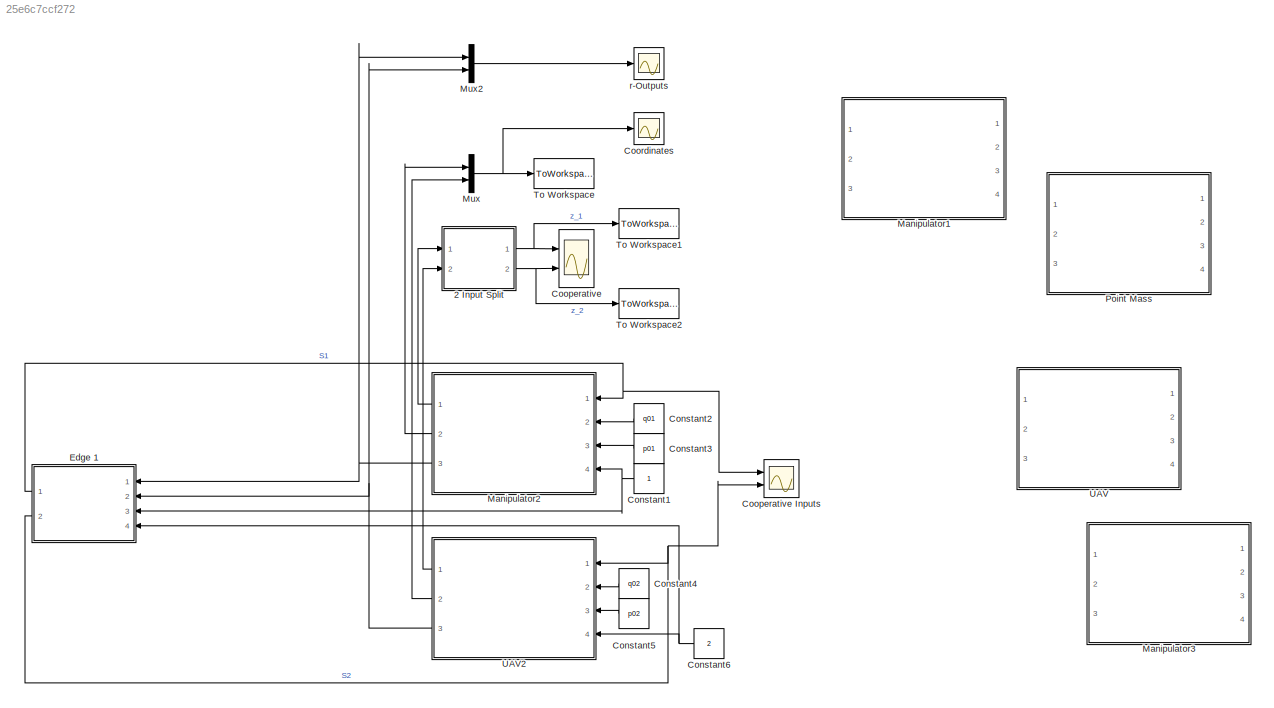
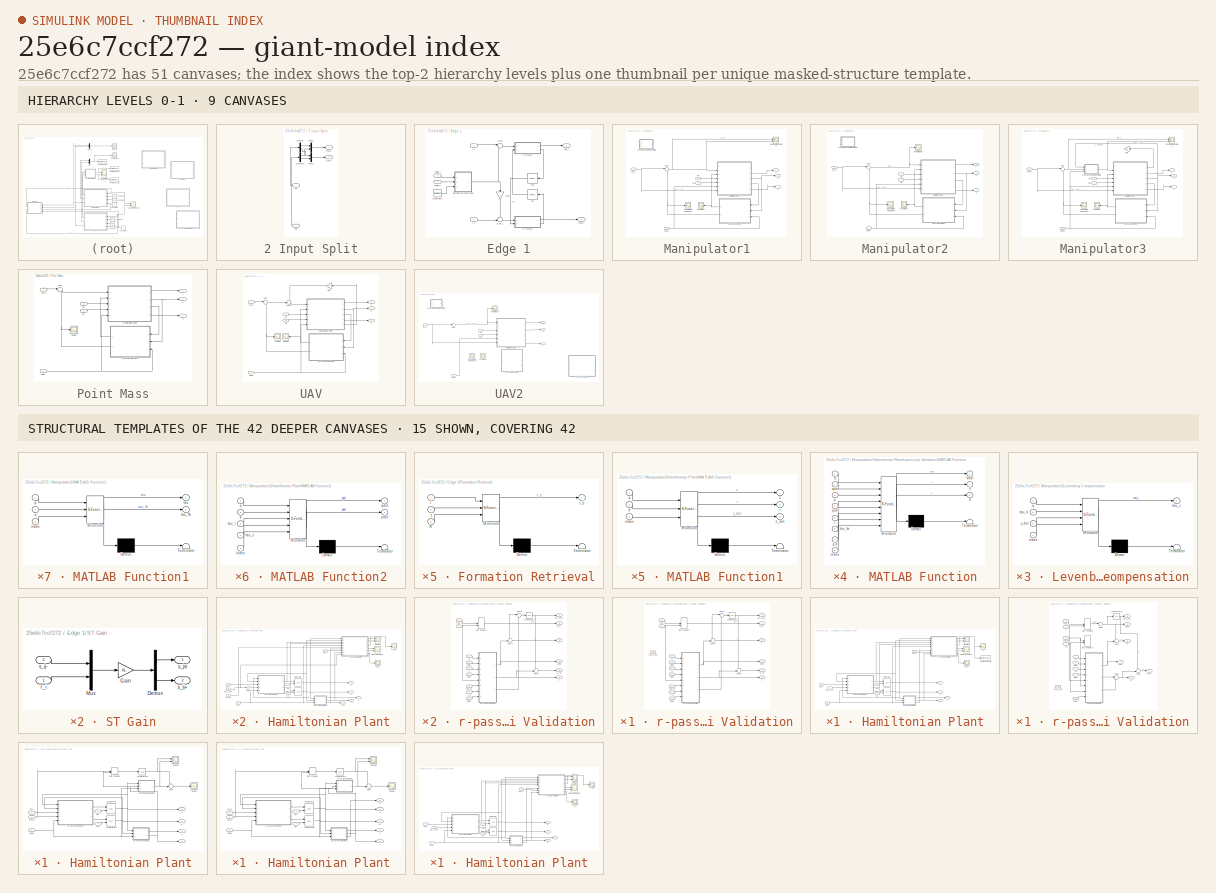
[diagram: thumbnail index - top-2 hierarchy levels (9 canvases) + 15 structural-template representatives of the remaining 42 canvases]
MODEL slx_25e6c7ccf272
KIND model
CONFIG AbsTol = auto
CONFIG EnableMultiTasking = off
CONFIG FixedStep = auto
CONFIG MaxStep = auto
CONFIG MinStep = auto
CONFIG RelTol = 1e-5
CONFIG SampleTimeConstraint = Unconstrained
CONFIG Solver = ode23tb
CONFIG SolverName = ode23tb
CONFIG StartTime = 0.0
CONFIG StopTime = 20
BLOCK [SubSystem] 2 Input Split
  Ports = [2, 2]
  RequestExecContextInheritance = off
BLOCK [Demux] 2 Input Split/Demux
  DisplayOption = bar
  Outputs = 2
  Ports = [1, 2]
BLOCK [Demux] 2 Input Split/Demux1
  DisplayOption = bar
  Outputs = 2
  Ports = [1, 2]
BLOCK [Inport] 2 Input Split/In1
  IconDisplay = Port number
BLOCK [Inport] 2 Input Split/In2
  IconDisplay = Port number
  Port = 2
BLOCK [Mux] 2 Input Split/Mux1
  DisplayOption = bar
  Inputs = 2
  Ports = [2, 1]
BLOCK [Mux] 2 Input Split/Mux3
  DisplayOption = bar
  Inputs = 2
  Ports = [2, 1]
BLOCK [Outport] 2 Input Split/Out1
  IconDisplay = Port number
BLOCK [Outport] 2 Input Split/Out2
  IconDisplay = Port number
  Port = 2
BLOCK [Constant] Constant1
BLOCK [Constant] Constant2
  Value = q01
BLOCK [Constant] Constant3
  Value = p01
BLOCK [Constant] Constant4
  Value = q02
BLOCK [Constant] Constant5
  Value = p02
BLOCK [Constant] Constant6
  Value = 2
BLOCK [Scope] Cooperative
  Floating = off
  NumInputPorts = 2
  Ports = [2]
  ScopeSpecificationString = Simulink.scopes.TimeScopeBlockCfg('CurrentConfiguration', extmgr.ConfigurationSet(extmgr.Configuration('Core','General UI',true),extmgr.Configuration('Core','Source UI',true),extmgr.Configuration('Sources','WiredSimulink',true,'DataLoggingVariableName','ScopeData1'),extmgr.Configuration('Visuals','Time Domain',true,'SerializedDisplays',{struct('MinYLimReal','-1.03771','MaxYLimReal','0.67086','YLab...<+2124ch>
BLOCK [Scope] Cooperative Inputs
  Floating = off
  NumInputPorts = 2
  Ports = [2]
  ScopeSpecificationString = Simulink.scopes.TimeScopeBlockCfg('CurrentConfiguration', extmgr.ConfigurationSet(extmgr.Configuration('Core','General UI',true),extmgr.Configuration('Core','Source UI',true),extmgr.Configuration('Sources','WiredSimulink',true,'DataLoggingVariableName','ScopeData2'),extmgr.Configuration('Visuals','Time Domain',true,'SerializedDisplays',{struct('MinYLimReal','-15.69662','MaxYLimReal','4.03105','YLa...<+2097ch>
BLOCK [Scope] Coordinates
  Floating = off
  NumInputPorts = 1
  Ports = [1]
  ScopeSpecificationString = Simulink.scopes.TimeScopeBlockCfg('CurrentConfiguration', extmgr.ConfigurationSet(extmgr.Configuration('Core','General UI',true),extmgr.Configuration('Core','Source UI',true),extmgr.Configuration('Sources','WiredSimulink',true,'DataLoggingVariableName','ScopeData2'),extmgr.Configuration('Visuals','Time Domain',true,'SerializedDisplays',{struct('MinYLimReal','-1.33577','MaxYLimReal','0.70397','YLab...<+1882ch>
BLOCK [SubSystem] Edge 1
  Ports = [4, 2]
  RequestExecContextInheritance = off
BLOCK [Constant] Edge 1/Constant1
  Value = Simulation.R
BLOCK [SubSystem] Edge 1/Formation Retrieval
  ErrorFcn = Stateflow.Translate.translate
  PermitHierarchicalResolution = ExplicitOnly
  Ports = [3, 1]
  RequestExecContextInheritance = off
  SFBlockType = MATLAB Function
  TreatAsAtomicUnit = on
BLOCK [Demux] Edge 1/Formation Retrieval/ Demux 
  Outputs = 1
  Ports = [1, 1]
BLOCK [S-Function] Edge 1/Formation Retrieval/ SFunction 
  EnableBusSupport = on
  FunctionName = sf_sfun
  PortCounts = [3 2]
  Ports = [3, 2]
  SFcnIsStateOwnerBlock = off
  SFunctionDeploymentMode = off
  Tag = Stateflow S-Function Model_2Systems_Manipulators 11
BLOCK [Terminator] Edge 1/Formation Retrieval/ Terminator 
BLOCK [Inport] Edge 1/Formation Retrieval/R
  IconDisplay = Port number
  Port = 3
BLOCK [Inport] Edge 1/Formation Retrieval/i
  IconDisplay = Port number
BLOCK [Inport] Edge 1/Formation Retrieval/j
  IconDisplay = Port number
  Port = 2
BLOCK [Outport] Edge 1/Formation Retrieval/r_ij
  IconDisplay = Port number
BLOCK [Gain] Edge 1/Gain
  Gain = -1
  OutDataTypeStr = Inherit: Inherit via internal rule
  ParamDataTypeStr = Inherit: Inherit via internal rule
  SaturateOnIntegerOverflow = off
BLOCK [SubSystem] Edge 1/ST Gain
  Ports = [2, 2]
  RequestExecContextInheritance = off
BLOCK [Demux] Edge 1/ST Gain/Demux
  DisplayOption = bar
  Outputs = 2
  Ports = [1, 2]
BLOCK [Gain] Edge 1/ST Gain/Gain
  Gain = KL
  Multiplication = Matrix(K*u)
  OutDataTypeStr = Inherit: Inherit via internal rule
  ParamDataTypeStr = Inherit: Inherit via internal rule
  SaturateOnIntegerOverflow = off
BLOCK [Mux] Edge 1/ST Gain/Mux
  DisplayOption = bar
  Inputs = 2
  Ports = [2, 1]
BLOCK [Inport] Edge 1/ST Gain/r_i
  IconDisplay = Port number
BLOCK [Outport] Edge 1/ST Gain/s_ij+
  IconDisplay = Port number
  Port = 2
BLOCK [Inport] Edge 1/ST Gain/s_ij-
  IconDisplay = Port number
  Port = 2
BLOCK [Outport] Edge 1/ST Gain/x_jsi
  IconDisplay = Port number
BLOCK [SubSystem] Edge 1/ST Gain1
  Ports = [2, 2]
  RequestExecContextInheritance = off
BLOCK [Demux] Edge 1/ST Gain1/Demux
  DisplayOption = bar
  Outputs = 2
  Ports = [1, 2]
BLOCK [Gain] Edge 1/ST Gain1/Gain
  Gain = KR
  Multiplication = Matrix(K*u)
  OutDataTypeStr = Inherit: Inherit via internal rule
  ParamDataTypeStr = Inherit: Inherit via internal rule
  SaturateOnIntegerOverflow = off
BLOCK [Mux] Edge 1/ST Gain1/Mux
  DisplayOption = bar
  Inputs = 2
  Ports = [2, 1]
BLOCK [Inport] Edge 1/ST Gain1/r_j
  IconDisplay = Port number
BLOCK [Inport] Edge 1/ST Gain1/s_ji+
  IconDisplay = Port number
  Port = 2
BLOCK [Outport] Edge 1/ST Gain1/s_ji-
  IconDisplay = Port number
  Port = 2
BLOCK [Outport] Edge 1/ST Gain1/x_isj
  IconDisplay = Port number
BLOCK [Sum] Edge 1/Sum
  IconShape = round
  InputSameDT = off
  Inputs = |++
  OutDataTypeStr = Inherit: Inherit via internal rule
  Ports = [2, 1]
  SaturateOnIntegerOverflow = off
BLOCK [Sum] Edge 1/Sum1
  IconShape = round
  InputSameDT = off
  Inputs = ++|
  OutDataTypeStr = Inherit: Inherit via internal rule
  Ports = [2, 1]
  SaturateOnIntegerOverflow = off
BLOCK [TransportDelay] Edge 1/T12
  DelayTime = T12
  Ports = [1, 1]
BLOCK [TransportDelay] Edge 1/T21
  DelayTime = T21
  Ports = [1, 1]
BLOCK [Inport] Edge 1/index_i
  IconDisplay = Port number
  Port = 3
BLOCK [Inport] Edge 1/index_j
  IconDisplay = Port number
  Port = 4
BLOCK [Inport] Edge 1/r_i
  IconDisplay = Port number
BLOCK [Inport] Edge 1/r_j
  IconDisplay = Port number
  Port = 2
BLOCK [Outport] Edge 1/tau_ij
  IconDisplay = Port number
BLOCK [Outport] Edge 1/tau_ji
  IconDisplay = Port number
  Port = 2
BLOCK [SubSystem] Manipulator1
  Commented = on
  Ports = [4, 3]
  RequestExecContextInheritance = off
BLOCK [SubSystem] Manipulator1/Hamiltonian Plant
  Ports = [7, 5]
  RequestExecContextInheritance = off
BLOCK [Scope] Manipulator1/Hamiltonian Plant/Integral Vdot + tau'r
  Floating = off
  NumInputPorts = 2
  Ports = [2]
  ScopeSpecificationString = Simulink.scopes.TimeScopeBlockCfg('CurrentConfiguration', extmgr.ConfigurationSet(extmgr.Configuration('Core','General UI',true),extmgr.Configuration('Core','Source UI',true),extmgr.Configuration('Sources','WiredSimulink',true,'DataLoggingVariableName','ScopeData5'),extmgr.Configuration('Visuals','Time Domain',true,'SerializedDisplays',{struct('MinYLimReal','-31.59653','MaxYLimReal','3.94405','YLa...<+1578ch>  <repeated x3 — deduplicated; at blocks: Integral Vdot + tau'r>
BLOCK [Integrator] Manipulator1/Hamiltonian Plant/Integrator
  InitialCondition = q01
  InitialConditionSource = external
  Ports = [2, 1]
BLOCK [Integrator] Manipulator1/Hamiltonian Plant/Integrator1
  InitialCondition = p02
  InitialConditionSource = external
  Ports = [2, 1]
BLOCK [SubSystem] Manipulator1/Hamiltonian Plant/MATLAB Function1
  ErrorFcn = Stateflow.Translate.translate
  PermitHierarchicalResolution = ExplicitOnly
  Ports = [3, 3]
  RequestExecContextInheritance = off
  SFBlockType = MATLAB Function
  TreatAsAtomicUnit = on
BLOCK [Demux] Manipulator1/Hamiltonian Plant/MATLAB Function1/ Demux 
  Outputs = 1
  Ports = [1, 1]
BLOCK [S-Function] Manipulator1/Hamiltonian Plant/MATLAB Function1/ SFunction 
  EnableBusSupport = on
  FunctionName = sf_sfun
  PortCounts = [3 4]
  Ports = [3, 4]
  SFcnIsStateOwnerBlock = off
  SFunctionDeploymentMode = off
  Tag = Stateflow S-Function Model_2Systems_Manipulators 7
BLOCK [Terminator] Manipulator1/Hamiltonian Plant/MATLAB Function1/ Terminator 
BLOCK [Inport] Manipulator1/Hamiltonian Plant/MATLAB Function1/index
  IconDisplay = Port number
  Port = 3
BLOCK [Inport] Manipulator1/Hamiltonian Plant/MATLAB Function1/p
  IconDisplay = Port number
  Port = 2
BLOCK [Inport] Manipulator1/Hamiltonian Plant/MATLAB Function1/q
  IconDisplay = Port number
BLOCK [Outport] Manipulator1/Hamiltonian Plant/MATLAB Function1/r
  IconDisplay = Port number
  Port = 2
BLOCK [Outport] Manipulator1/Hamiltonian Plant/MATLAB Function1/z
  IconDisplay = Port number
BLOCK [Outport] Manipulator1/Hamiltonian Plant/MATLAB Function1/z_dot
  IconDisplay = Port number
  Port = 3
BLOCK [SubSystem] Manipulator1/Hamiltonian Plant/MATLAB Function2
  ErrorFcn = Stateflow.Translate.translate
  PermitHierarchicalResolution = ExplicitOnly
  Ports = [5, 2]
  RequestExecContextInheritance = off
  SFBlockType = MATLAB Function
  TreatAsAtomicUnit = on
BLOCK [Demux] Manipulator1/Hamiltonian Plant/MATLAB Function2/ Demux 
  Outputs = 1
  Ports = [1, 1]
BLOCK [S-Function] Manipulator1/Hamiltonian Plant/MATLAB Function2/ SFunction 
  EnableBusSupport = on
  FunctionName = sf_sfun
  PortCounts = [5 3]
  Ports = [5, 3]
  SFcnIsStateOwnerBlock = off
  SFunctionDeploymentMode = off
  Tag = Stateflow S-Function Model_2Systems_Manipulators 8
BLOCK [Terminator] Manipulator1/Hamiltonian Plant/MATLAB Function2/ Terminator 
BLOCK [Inport] Manipulator1/Hamiltonian Plant/MATLAB Function2/index
  IconDisplay = Port number
  Port = 5
BLOCK [Inport] Manipulator1/Hamiltonian Plant/MATLAB Function2/p
  IconDisplay = Port number
  Port = 2
BLOCK [Outport] Manipulator1/Hamiltonian Plant/MATLAB Function2/pdot
  IconDisplay = Port number
  Port = 2
BLOCK [Inport] Manipulator1/Hamiltonian Plant/MATLAB Function2/q
  IconDisplay = Port number
BLOCK [Outport] Manipulator1/Hamiltonian Plant/MATLAB Function2/qdot
  IconDisplay = Port number
BLOCK [Inport] Manipulator1/Hamiltonian Plant/MATLAB Function2/tau_c
  IconDisplay = Port number
  Port = 4
BLOCK [Inport] Manipulator1/Hamiltonian Plant/MATLAB Function2/tau_l
  IconDisplay = Port number
  Port = 3
BLOCK [Scope] Manipulator1/Hamiltonian Plant/S
  Floating = off
  NumInputPorts = 1
  Ports = [1]
  ScopeSpecificationString = Simulink.scopes.TimeScopeBlockCfg('CurrentConfiguration', extmgr.ConfigurationSet(extmgr.Configuration('Core','General UI',true),extmgr.Configuration('Core','Source UI',true),extmgr.Configuration('Sources','WiredSimulink',true,'DataLoggingVariableName','ScopeData4'),extmgr.Configuration('Visuals','Time Domain',true,'SerializedDisplays',{struct('MinYLimReal','-5.97699','MaxYLimReal','11.50288','YLa...<+1479ch>
BLOCK [Scope] Manipulator1/Hamiltonian Plant/S_Int
  Floating = off
  NumInputPorts = 1
  Ports = [1]
  ScopeSpecificationString = Simulink.scopes.TimeScopeBlockCfg('CurrentConfiguration', extmgr.ConfigurationSet(extmgr.Configuration('Core','General UI',true),extmgr.Configuration('Core','Source UI',true),extmgr.Configuration('Sources','WiredSimulink',true,'DataLoggingVariableName','ScopeData1'),extmgr.Configuration('Visuals','Time Domain',true,'SerializedDisplays',{struct('MinYLimReal','-327.91107','MaxYLimReal','36.43456','Y...<+1487ch>
BLOCK [Sum] Manipulator1/Hamiltonian Plant/Sum1
  IconShape = round
  InputSameDT = off
  Inputs = |++
  OutDataTypeStr = Inherit: Inherit via internal rule
  Ports = [2, 1]
  SaturateOnIntegerOverflow = off
BLOCK [Inport] Manipulator1/Hamiltonian Plant/index
  IconDisplay = Port number
  Port = 6
BLOCK [Outport] Manipulator1/Hamiltonian Plant/p
  IconDisplay = Port number
  Port = 4
BLOCK [Inport] Manipulator1/Hamiltonian Plant/p0
  IconDisplay = Port number
  Port = 5
BLOCK [Outport] Manipulator1/Hamiltonian Plant/q
  IconDisplay = Port number
  Port = 3
BLOCK [Inport] Manipulator1/Hamiltonian Plant/q0
  IconDisplay = Port number
  Port = 4
BLOCK [Outport] Manipulator1/Hamiltonian Plant/r
  IconDisplay = Port number
  Port = 2
BLOCK [SubSystem] Manipulator1/Hamiltonian Plant/r-passivity Validation
  Ports = [10, 6]
  RequestExecContextInheritance = off
BLOCK [DotProduct] Manipulator1/Hamiltonian Plant/r-passivity Validation/Dot Product
  OutDataTypeStr = Inherit: Inherit via internal rule
BLOCK [Integrator] Manipulator1/Hamiltonian Plant/r-passivity Validation/Integrator2
  Ports = [1, 1]
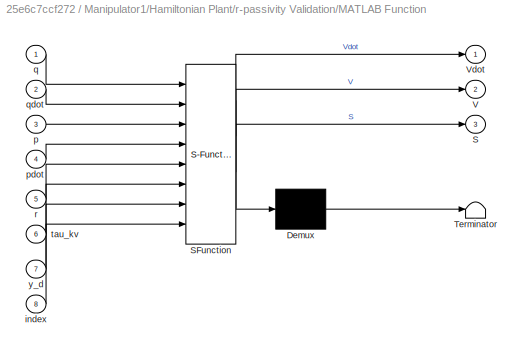
BLOCK [SubSystem] Manipulator1/Hamiltonian Plant/r-passivity Validation/MATLAB Function
  ErrorFcn = Stateflow.Translate.translate
  PermitHierarchicalResolution = ExplicitOnly
  Ports = [8, 3]
  RequestExecContextInheritance = off
  SFBlockType = MATLAB Function
  TreatAsAtomicUnit = on
BLOCK [Demux] Manipulator1/Hamiltonian Plant/r-passivity Validation/MATLAB Function/ Demux 
  Outputs = 1
  Ports = [1, 1]
BLOCK [S-Function] Manipulator1/Hamiltonian Plant/r-passivity Validation/MATLAB Function/ SFunction 
  EnableBusSupport = on
  FunctionName = sf_sfun
  Parameters = Kv,Vr0
  PortCounts = [8 4]
  Ports = [8, 4]
  SFcnIsStateOwnerBlock = off
  SFunctionDeploymentMode = off
  Tag = Stateflow S-Function Model_2Systems_Manipulators 9
BLOCK [Terminator] Manipulator1/Hamiltonian Plant/r-passivity Validation/MATLAB Function/ Terminator 
BLOCK [Outport] Manipulator1/Hamiltonian Plant/r-passivity Validation/MATLAB Function/S
  IconDisplay = Port number
  Port = 3
BLOCK [Outport] Manipulator1/Hamiltonian Plant/r-passivity Validation/MATLAB Function/V
  IconDisplay = Port number
  Port = 2
BLOCK [Outport] Manipulator1/Hamiltonian Plant/r-passivity Validation/MATLAB Function/Vdot
  IconDisplay = Port number
BLOCK [Inport] Manipulator1/Hamiltonian Plant/r-passivity Validation/MATLAB Function/index
  IconDisplay = Port number
  Port = 8
BLOCK [Inport] Manipulator1/Hamiltonian Plant/r-passivity Validation/MATLAB Function/p
  IconDisplay = Port number
  Port = 3
BLOCK [Inport] Manipulator1/Hamiltonian Plant/r-passivity Validation/MATLAB Function/pdot
  IconDisplay = Port number
  Port = 4
BLOCK [Inport] Manipulator1/Hamiltonian Plant/r-passivity Validation/MATLAB Function/q
  IconDisplay = Port number
BLOCK [Inport] Manipulator1/Hamiltonian Plant/r-passivity Validation/MATLAB Function/qdot
  IconDisplay = Port number
  Port = 2
BLOCK [Inport] Manipulator1/Hamiltonian Plant/r-passivity Validation/MATLAB Function/r
  IconDisplay = Port number
  Port = 5
BLOCK [Inport] Manipulator1/Hamiltonian Plant/r-passivity Validation/MATLAB Function/tau_kv
  IconDisplay = Port number
  Port = 6
BLOCK [Inport] Manipulator1/Hamiltonian Plant/r-passivity Validation/MATLAB Function/y_d
  IconDisplay = Port number
  Port = 7
BLOCK [Outport] Manipulator1/Hamiltonian Plant/r-passivity Validation/S
  IconDisplay = Port number
  Port = 3
BLOCK [Outport] Manipulator1/Hamiltonian Plant/r-passivity Validation/S_Int
  IconDisplay = Port number
  Port = 6
BLOCK [Sum] Manipulator1/Hamiltonian Plant/r-passivity Validation/Sum2
  IconShape = round
  InputSameDT = off
  Inputs = +-|
  OutDataTypeStr = Inherit: Inherit via internal rule
  Ports = [2, 1]
  SaturateOnIntegerOverflow = off
BLOCK [Sum] Manipulator1/Hamiltonian Plant/r-passivity Validation/Sum3
  IconShape = round
  InputSameDT = off
  Inputs = |+-
  OutDataTypeStr = Inherit: Inherit via internal rule
  Ports = [2, 1]
  SaturateOnIntegerOverflow = off
BLOCK [Sum] Manipulator1/Hamiltonian Plant/r-passivity Validation/Sum4
  IconShape = round
  InputSameDT = off
  Inputs = +-|
  OutDataTypeStr = Inherit: Inherit via internal rule
  Ports = [2, 1]
  SaturateOnIntegerOverflow = off
BLOCK [Outport] Manipulator1/Hamiltonian Plant/r-passivity Validation/V
  IconDisplay = Port number
  Port = 4
BLOCK [Inport] Manipulator1/Hamiltonian Plant/r-passivity Validation/index
  IconDisplay = Port number
  Port = 5
BLOCK [Outport] Manipulator1/Hamiltonian Plant/r-passivity Validation/int_tau_r
  IconDisplay = Port number
  Port = 5
BLOCK [Inport] Manipulator1/Hamiltonian Plant/r-passivity Validation/p
  IconDisplay = Port number
  Port = 2
BLOCK [Inport] Manipulator1/Hamiltonian Plant/r-passivity Validation/pdot
  IconDisplay = Port number
  Port = 4
BLOCK [Inport] Manipulator1/Hamiltonian Plant/r-passivity Validation/q
  IconDisplay = Port number
BLOCK [Inport] Manipulator1/Hamiltonian Plant/r-passivity Validation/qdot
  IconDisplay = Port number
  Port = 3
BLOCK [Inport] Manipulator1/Hamiltonian Plant/r-passivity Validation/r
  IconDisplay = Port number
  Port = 9
BLOCK [Inport] Manipulator1/Hamiltonian Plant/r-passivity Validation/tau_Kv
  IconDisplay = Port number
  Port = 6
BLOCK [Inport] Manipulator1/Hamiltonian Plant/r-passivity Validation/tau_c
  IconDisplay = Port number
  Port = 8
BLOCK [Inport] Manipulator1/Hamiltonian Plant/r-passivity Validation/tau_c_hat
  IconDisplay = Port number
  Port = 10
BLOCK [Outport] Manipulator1/Hamiltonian Plant/r-passivity Validation/tau_r
  IconDisplay = Port number
  Port = 2
BLOCK [Outport] Manipulator1/Hamiltonian Plant/r-passivity Validation/vdot
  IconDisplay = Port number
BLOCK [Inport] Manipulator1/Hamiltonian Plant/r-passivity Validation/y_d
  IconDisplay = Port number
  Port = 7
BLOCK [Inport] Manipulator1/Hamiltonian Plant/tau_Kv
  IconDisplay = Port number
BLOCK [Inport] Manipulator1/Hamiltonian Plant/tau_c
  IconDisplay = Port number
  Port = 7
BLOCK [Inport] Manipulator1/Hamiltonian Plant/tau_c_hat
  IconDisplay = Port number
  Port = 2
BLOCK [Inport] Manipulator1/Hamiltonian Plant/tau_l
  IconDisplay = Port number
  Port = 3
BLOCK [Scope] Manipulator1/Hamiltonian Plant/vdot + tau'r
  Floating = off
  NumInputPorts = 2
  Ports = [2]
  ScopeSpecificationString = Simulink.scopes.TimeScopeBlockCfg('CurrentConfiguration', extmgr.ConfigurationSet(extmgr.Configuration('Core','General UI',true),extmgr.Configuration('Core','Source UI',true),extmgr.Configuration('Sources','WiredSimulink',true,'DataLoggingVariableName','ScopeData3'),extmgr.Configuration('Visuals','Time Domain',true,'SerializedDisplays',{struct('MinYLimReal','-163.17397','MaxYLimReal','27.52284','Y...<+1541ch>  <repeated x4 — deduplicated; at blocks: vdot + tau'r>
BLOCK [Outport] Manipulator1/Hamiltonian Plant/z
  IconDisplay = Port number
  Port = 5
BLOCK [Outport] Manipulator1/Hamiltonian Plant/z_dot
  IconDisplay = Port number
BLOCK [Scope] Manipulator1/Input Compensation
  Floating = off
  NumInputPorts = 2
  Ports = [2]
  ScopeSpecificationString = Simulink.scopes.TimeScopeBlockCfg('CurrentConfiguration', extmgr.ConfigurationSet(extmgr.Configuration('Core','General UI',true),extmgr.Configuration('Core','Source UI',true),extmgr.Configuration('Sources','WiredSimulink',true,'DataLoggingVariableName','ScopeData1'),extmgr.Configuration('Visuals','Time Domain',true,'SerializedDisplays',{struct('MinYLimReal','-0.07525','MaxYLimReal','23.89324','YLa...<+1531ch>
BLOCK [SubSystem] Manipulator1/Levenberg Compensation
  Commented = on
  ErrorFcn = Stateflow.Translate.translate
  PermitHierarchicalResolution = ExplicitOnly
  Ports = [4, 1]
  RequestExecContextInheritance = off
  SFBlockType = MATLAB Function
  TreatAsAtomicUnit = on
BLOCK [Demux] Manipulator1/Levenberg Compensation/ Demux 
  Outputs = 1
  Ports = [1, 1]
BLOCK [S-Function] Manipulator1/Levenberg Compensation/ SFunction 
  EnableBusSupport = on
  FunctionName = sf_sfun
  PortCounts = [4 2]
  Ports = [4, 2]
  SFcnIsStateOwnerBlock = off
  SFunctionDeploymentMode = off
  Tag = Stateflow S-Function Model_2Systems_Manipulators 10
BLOCK [Terminator] Manipulator1/Levenberg Compensation/ Terminator 
BLOCK [Inport] Manipulator1/Levenberg Compensation/index
  IconDisplay = Port number
  Port = 4
BLOCK [Inport] Manipulator1/Levenberg Compensation/q
  IconDisplay = Port number
BLOCK [Outport] Manipulator1/Levenberg Compensation/tau_c
  IconDisplay = Port number
BLOCK [Inport] Manipulator1/Levenberg Compensation/tau_k
  IconDisplay = Port number
  Port = 2
BLOCK [Inport] Manipulator1/Levenberg Compensation/z_dot
  IconDisplay = Port number
  Port = 3
BLOCK [Scope] Manipulator1/Local Input
  Floating = off
  NumInputPorts = 1
  Ports = [1]
  ScopeSpecificationString = Simulink.scopes.TimeScopeBlockCfg('CurrentConfiguration', extmgr.ConfigurationSet(extmgr.Configuration('Core','General UI',true),extmgr.Configuration('Core','Source UI',true),extmgr.Configuration('Sources','WiredSimulink',true,'DataLoggingVariableName','ScopeData1'),extmgr.Configuration('Visuals','Time Domain',true,'SerializedDisplays',{struct('MinYLimReal','-2.28794','MaxYLimReal','20.59146','YLa...<+1489ch>  <repeated x4 — deduplicated; at blocks: Local Input, System Input>
BLOCK [SubSystem] Manipulator1/MATLAB Function1
  ErrorFcn = Stateflow.Translate.translate
  PermitHierarchicalResolution = ExplicitOnly
  Ports = [3, 2]
  RequestExecContextInheritance = off
  SFBlockType = MATLAB Function
  TreatAsAtomicUnit = on
BLOCK [Demux] Manipulator1/MATLAB Function1/ Demux 
  Outputs = 1
  Ports = [1, 1]
BLOCK [S-Function] Manipulator1/MATLAB Function1/ SFunction 
  EnableBusSupport = on
  FunctionName = sf_sfun
  PortCounts = [3 3]
  Ports = [3, 3]
  SFcnIsStateOwnerBlock = off
  SFunctionDeploymentMode = off
  Tag = Stateflow S-Function Model_2Systems_Manipulators 15
BLOCK [Terminator] Manipulator1/MATLAB Function1/ Terminator 
BLOCK [Inport] Manipulator1/MATLAB Function1/index
  IconDisplay = Port number
  Port = 3
BLOCK [Inport] Manipulator1/MATLAB Function1/p
  IconDisplay = Port number
BLOCK [Inport] Manipulator1/MATLAB Function1/q
  IconDisplay = Port number
  Port = 2
BLOCK [Outport] Manipulator1/MATLAB Function1/tau
  IconDisplay = Port number
BLOCK [Outport] Manipulator1/MATLAB Function1/tau_fb
  IconDisplay = Port number
  Port = 2
BLOCK [Scope] Manipulator1/Passivating Feedback
  Floating = off
  NumInputPorts = 1
  Ports = [1]
  ScopeSpecificationString = Simulink.scopes.TimeScopeBlockCfg('CurrentConfiguration', extmgr.ConfigurationSet(extmgr.Configuration('Core','General UI',true),extmgr.Configuration('Core','Source UI',true),extmgr.Configuration('Sources','WiredSimulink',true,'DataLoggingVariableName','ScopeData1'),extmgr.Configuration('Visuals','Time Domain',true,'SerializedDisplays',{struct('MinYLimReal','-0.20285','MaxYLimReal','1.82564','YLab...<+1441ch>  <repeated x3 — deduplicated; at blocks: Passivating Feedback>
BLOCK [Sum] Manipulator1/Sum
  IconShape = round
  InputSameDT = off
  Inputs = |++
  OutDataTypeStr = Inherit: Inherit via internal rule
  Ports = [2, 1]
  SaturateOnIntegerOverflow = off
BLOCK [Inport] Manipulator1/index
  IconDisplay = Port number
  Port = 4
BLOCK [Inport] Manipulator1/p0
  IconDisplay = Port number
  Port = 3
BLOCK [Outport] Manipulator1/q
  IconDisplay = Port number
  Port = 2
BLOCK [Inport] Manipulator1/q0
  IconDisplay = Port number
  Port = 2
BLOCK [Outport] Manipulator1/r
  IconDisplay = Port number
  Port = 3
BLOCK [Inport] Manipulator1/tau_c
  IconDisplay = Port number
BLOCK [Outport] Manipulator1/z
  IconDisplay = Port number
BLOCK [SubSystem] Manipulator2
  Ports = [4, 3]
  RequestExecContextInheritance = off
BLOCK [SubSystem] Manipulator2/Hamiltonian Plant
  Ports = [6, 4]
  RequestExecContextInheritance = off
BLOCK [Scope] Manipulator2/Hamiltonian Plant/Integral Vdot + tau'r
  Floating = off
  NumInputPorts = 2
  Ports = [2]
BLOCK [Integrator] Manipulator2/Hamiltonian Plant/Integrator
  InitialCondition = q01
  InitialConditionSource = external
  Ports = [2, 1]
BLOCK [Integrator] Manipulator2/Hamiltonian Plant/Integrator1
  InitialCondition = p02
  InitialConditionSource = external
  Ports = [2, 1]
BLOCK [SubSystem] Manipulator2/Hamiltonian Plant/MATLAB Function1
  ErrorFcn = Stateflow.Translate.translate
  PermitHierarchicalResolution = ExplicitOnly
  Ports = [3, 3]
  RequestExecContextInheritance = off
  SFBlockType = MATLAB Function
  TreatAsAtomicUnit = on
BLOCK [Demux] Manipulator2/Hamiltonian Plant/MATLAB Function1/ Demux 
  Outputs = 1
  Ports = [1, 1]
BLOCK [S-Function] Manipulator2/Hamiltonian Plant/MATLAB Function1/ SFunction 
  EnableBusSupport = on
  FunctionName = sf_sfun
  PortCounts = [3 4]
  Ports = [3, 4]
  SFcnIsStateOwnerBlock = off
  SFunctionDeploymentMode = off
  Tag = Stateflow S-Function Model_2Systems_Manipulators 3
BLOCK [Terminator] Manipulator2/Hamiltonian Plant/MATLAB Function1/ Terminator 
BLOCK [Inport] Manipulator2/Hamiltonian Plant/MATLAB Function1/index
  IconDisplay = Port number
  Port = 3
BLOCK [Inport] Manipulator2/Hamiltonian Plant/MATLAB Function1/p
  IconDisplay = Port number
  Port = 2
BLOCK [Inport] Manipulator2/Hamiltonian Plant/MATLAB Function1/q
  IconDisplay = Port number
BLOCK [Outport] Manipulator2/Hamiltonian Plant/MATLAB Function1/r
  IconDisplay = Port number
  Port = 2
BLOCK [Outport] Manipulator2/Hamiltonian Plant/MATLAB Function1/z
  IconDisplay = Port number
BLOCK [Outport] Manipulator2/Hamiltonian Plant/MATLAB Function1/z_dot
  IconDisplay = Port number
  Port = 3
BLOCK [SubSystem] Manipulator2/Hamiltonian Plant/MATLAB Function2
  ErrorFcn = Stateflow.Translate.translate
  PermitHierarchicalResolution = ExplicitOnly
  Ports = [5, 2]
  RequestExecContextInheritance = off
  SFBlockType = MATLAB Function
  TreatAsAtomicUnit = on
BLOCK [Demux] Manipulator2/Hamiltonian Plant/MATLAB Function2/ Demux 
  Outputs = 1
  Ports = [1, 1]
BLOCK [S-Function] Manipulator2/Hamiltonian Plant/MATLAB Function2/ SFunction 
  EnableBusSupport = on
  FunctionName = sf_sfun
  PortCounts = [5 3]
  Ports = [5, 3]
  SFcnIsStateOwnerBlock = off
  SFunctionDeploymentMode = off
  Tag = Stateflow S-Function Model_2Systems_Manipulators 4
BLOCK [Terminator] Manipulator2/Hamiltonian Plant/MATLAB Function2/ Terminator 
BLOCK [Inport] Manipulator2/Hamiltonian Plant/MATLAB Function2/index
  IconDisplay = Port number
  Port = 5
BLOCK [Inport] Manipulator2/Hamiltonian Plant/MATLAB Function2/p
  IconDisplay = Port number
  Port = 2
BLOCK [Outport] Manipulator2/Hamiltonian Plant/MATLAB Function2/pdot
  IconDisplay = Port number
  Port = 2
BLOCK [Inport] Manipulator2/Hamiltonian Plant/MATLAB Function2/q
  IconDisplay = Port number
BLOCK [Outport] Manipulator2/Hamiltonian Plant/MATLAB Function2/qdot
  IconDisplay = Port number
BLOCK [Inport] Manipulator2/Hamiltonian Plant/MATLAB Function2/tau_c
  IconDisplay = Port number
  Port = 4
BLOCK [Inport] Manipulator2/Hamiltonian Plant/MATLAB Function2/tau_l
  IconDisplay = Port number
  Port = 3
BLOCK [Scope] Manipulator2/Hamiltonian Plant/S
  Floating = off
  NumInputPorts = 1
  Ports = [1]
  ScopeSpecificationString = Simulink.scopes.TimeScopeBlockCfg('CurrentConfiguration', extmgr.ConfigurationSet(extmgr.Configuration('Core','General UI',true),extmgr.Configuration('Core','Source UI',true),extmgr.Configuration('Sources','WiredSimulink',true,'DataLoggingVariableName','ScopeData4'),extmgr.Configuration('Visuals','Time Domain',true,'SerializedDisplays',{struct('MinYLimReal','-17.12525','MaxYLimReal','88.81627','YL...<+1531ch>
BLOCK [Scope] Manipulator2/Hamiltonian Plant/S_Int
  Floating = off
  NumInputPorts = 1
  Ports = [1]
  ScopeSpecificationString = Simulink.scopes.TimeScopeBlockCfg('CurrentConfiguration', extmgr.ConfigurationSet(extmgr.Configuration('Core','General UI',true),extmgr.Configuration('Core','Source UI',true),extmgr.Configuration('Sources','WiredSimulink',true,'DataLoggingVariableName','ScopeData1'),extmgr.Configuration('Visuals','Time Domain',true,'SerializedDisplays',{struct('MinYLimReal','-327.91107','MaxYLimReal','36.43456','Y...<+1511ch>
BLOCK [ToWorkspace] Manipulator2/Hamiltonian Plant/To Workspace
  FixptAsFi = on
  MaxDataPoints = inf
  Ports = [1]
  SampleTime = -1
  Save2DSignal = 3-D array (concatenate along third dimension)
  SaveFormat = Timeseries
  VariableName = S_1
BLOCK [Inport] Manipulator2/Hamiltonian Plant/index
  IconDisplay = Port number
  Port = 5
BLOCK [Outport] Manipulator2/Hamiltonian Plant/p
  IconDisplay = Port number
  Port = 3
BLOCK [Inport] Manipulator2/Hamiltonian Plant/p0
  IconDisplay = Port number
  Port = 4
BLOCK [Outport] Manipulator2/Hamiltonian Plant/q
  IconDisplay = Port number
  Port = 2
BLOCK [Inport] Manipulator2/Hamiltonian Plant/q0
  IconDisplay = Port number
  Port = 3
BLOCK [Outport] Manipulator2/Hamiltonian Plant/r
  IconDisplay = Port number
BLOCK [SubSystem] Manipulator2/Hamiltonian Plant/r-passivity Validation
  Ports = [9, 6]
  RequestExecContextInheritance = off
BLOCK [DotProduct] Manipulator2/Hamiltonian Plant/r-passivity Validation/Dot Product
  OutDataTypeStr = Inherit: Inherit via internal rule
BLOCK [Integrator] Manipulator2/Hamiltonian Plant/r-passivity Validation/Integrator2
  Ports = [1, 1]
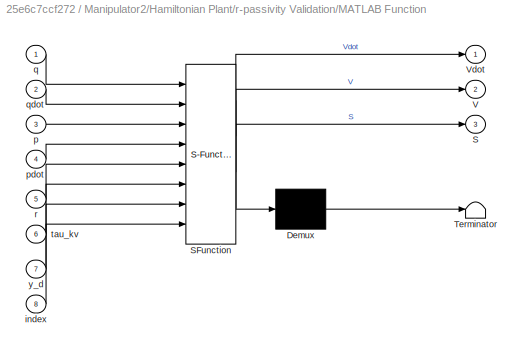
BLOCK [SubSystem] Manipulator2/Hamiltonian Plant/r-passivity Validation/MATLAB Function
  ErrorFcn = Stateflow.Translate.translate
  PermitHierarchicalResolution = ExplicitOnly
  Ports = [8, 3]
  RequestExecContextInheritance = off
  SFBlockType = MATLAB Function
  TreatAsAtomicUnit = on
BLOCK [Demux] Manipulator2/Hamiltonian Plant/r-passivity Validation/MATLAB Function/ Demux 
  Outputs = 1
  Ports = [1, 1]
BLOCK [S-Function] Manipulator2/Hamiltonian Plant/r-passivity Validation/MATLAB Function/ SFunction 
  EnableBusSupport = on
  FunctionName = sf_sfun
  Parameters = Kv,Vr0
  PortCounts = [8 4]
  Ports = [8, 4]
  SFcnIsStateOwnerBlock = off
  SFunctionDeploymentMode = off
  Tag = Stateflow S-Function Model_2Systems_Manipulators 12
BLOCK [Terminator] Manipulator2/Hamiltonian Plant/r-passivity Validation/MATLAB Function/ Terminator 
BLOCK [Outport] Manipulator2/Hamiltonian Plant/r-passivity Validation/MATLAB Function/S
  IconDisplay = Port number
  Port = 3
BLOCK [Outport] Manipulator2/Hamiltonian Plant/r-passivity Validation/MATLAB Function/V
  IconDisplay = Port number
  Port = 2
BLOCK [Outport] Manipulator2/Hamiltonian Plant/r-passivity Validation/MATLAB Function/Vdot
  IconDisplay = Port number
BLOCK [Inport] Manipulator2/Hamiltonian Plant/r-passivity Validation/MATLAB Function/index
  IconDisplay = Port number
  Port = 8
BLOCK [Inport] Manipulator2/Hamiltonian Plant/r-passivity Validation/MATLAB Function/p
  IconDisplay = Port number
  Port = 3
BLOCK [Inport] Manipulator2/Hamiltonian Plant/r-passivity Validation/MATLAB Function/pdot
  IconDisplay = Port number
  Port = 4
BLOCK [Inport] Manipulator2/Hamiltonian Plant/r-passivity Validation/MATLAB Function/q
  IconDisplay = Port number
BLOCK [Inport] Manipulator2/Hamiltonian Plant/r-passivity Validation/MATLAB Function/qdot
  IconDisplay = Port number
  Port = 2
BLOCK [Inport] Manipulator2/Hamiltonian Plant/r-passivity Validation/MATLAB Function/r
  IconDisplay = Port number
  Port = 5
BLOCK [Inport] Manipulator2/Hamiltonian Plant/r-passivity Validation/MATLAB Function/tau_kv
  IconDisplay = Port number
  Port = 6
BLOCK [Inport] Manipulator2/Hamiltonian Plant/r-passivity Validation/MATLAB Function/y_d
  IconDisplay = Port number
  Port = 7
BLOCK [Outport] Manipulator2/Hamiltonian Plant/r-passivity Validation/S
  IconDisplay = Port number
  Port = 3
BLOCK [Outport] Manipulator2/Hamiltonian Plant/r-passivity Validation/S_Int
  IconDisplay = Port number
  Port = 6
BLOCK [Sum] Manipulator2/Hamiltonian Plant/r-passivity Validation/Sum2
  IconShape = round
  InputSameDT = off
  Inputs = +-|
  OutDataTypeStr = Inherit: Inherit via internal rule
  Ports = [2, 1]
  SaturateOnIntegerOverflow = off
BLOCK [Sum] Manipulator2/Hamiltonian Plant/r-passivity Validation/Sum3
  IconShape = round
  InputSameDT = off
  Inputs = |+-
  OutDataTypeStr = Inherit: Inherit via internal rule
  Ports = [2, 1]
  SaturateOnIntegerOverflow = off
BLOCK [Sum] Manipulator2/Hamiltonian Plant/r-passivity Validation/Sum4
  IconShape = round
  InputSameDT = off
  Inputs = +-|
  OutDataTypeStr = Inherit: Inherit via internal rule
  Ports = [2, 1]
  SaturateOnIntegerOverflow = off
BLOCK [Outport] Manipulator2/Hamiltonian Plant/r-passivity Validation/V
  IconDisplay = Port number
  Port = 4
BLOCK [Inport] Manipulator2/Hamiltonian Plant/r-passivity Validation/index
  IconDisplay = Port number
  Port = 5
BLOCK [Outport] Manipulator2/Hamiltonian Plant/r-passivity Validation/int_tau_r
  IconDisplay = Port number
  Port = 5
BLOCK [Inport] Manipulator2/Hamiltonian Plant/r-passivity Validation/p
  IconDisplay = Port number
  Port = 2
BLOCK [Inport] Manipulator2/Hamiltonian Plant/r-passivity Validation/pdot
  IconDisplay = Port number
  Port = 4
BLOCK [Inport] Manipulator2/Hamiltonian Plant/r-passivity Validation/q
  IconDisplay = Port number
BLOCK [Inport] Manipulator2/Hamiltonian Plant/r-passivity Validation/qdot
  IconDisplay = Port number
  Port = 3
BLOCK [Inport] Manipulator2/Hamiltonian Plant/r-passivity Validation/r
  IconDisplay = Port number
  Port = 9
BLOCK [Inport] Manipulator2/Hamiltonian Plant/r-passivity Validation/tau_Kv
  IconDisplay = Port number
  Port = 6
BLOCK [Inport] Manipulator2/Hamiltonian Plant/r-passivity Validation/tau_c
  IconDisplay = Port number
  Port = 8
BLOCK [Outport] Manipulator2/Hamiltonian Plant/r-passivity Validation/tau_r
  IconDisplay = Port number
  Port = 2
BLOCK [Outport] Manipulator2/Hamiltonian Plant/r-passivity Validation/vdot
  IconDisplay = Port number
BLOCK [Inport] Manipulator2/Hamiltonian Plant/r-passivity Validation/y_d
  IconDisplay = Port number
  Port = 7
BLOCK [Inport] Manipulator2/Hamiltonian Plant/tau_c
  IconDisplay = Port number
  Port = 6
BLOCK [Inport] Manipulator2/Hamiltonian Plant/tau_c_hat
  IconDisplay = Port number
BLOCK [Inport] Manipulator2/Hamiltonian Plant/tau_l
  IconDisplay = Port number
  Port = 2
BLOCK [Scope] Manipulator2/Hamiltonian Plant/vdot + tau'r
  Floating = off
  NumInputPorts = 2
  Ports = [2]
BLOCK [Outport] Manipulator2/Hamiltonian Plant/z
  IconDisplay = Port number
  Port = 4
BLOCK [SubSystem] Manipulator2/Levenberg Compensation
  Commented = on
  ErrorFcn = Stateflow.Translate.translate
  PermitHierarchicalResolution = ExplicitOnly
  Ports = [4, 1]
  RequestExecContextInheritance = off
  SFBlockType = MATLAB Function
  TreatAsAtomicUnit = on
BLOCK [Demux] Manipulator2/Levenberg Compensation/ Demux 
  Outputs = 1
  Ports = [1, 1]
BLOCK [S-Function] Manipulator2/Levenberg Compensation/ SFunction 
  EnableBusSupport = on
  FunctionName = sf_sfun
  PortCounts = [4 2]
  Ports = [4, 2]
  SFcnIsStateOwnerBlock = off
  SFunctionDeploymentMode = off
  Tag = Stateflow S-Function Model_2Systems_Manipulators 13
BLOCK [Terminator] Manipulator2/Levenberg Compensation/ Terminator 
BLOCK [Inport] Manipulator2/Levenberg Compensation/index
  IconDisplay = Port number
  Port = 4
BLOCK [Inport] Manipulator2/Levenberg Compensation/q
  IconDisplay = Port number
BLOCK [Outport] Manipulator2/Levenberg Compensation/tau_c
  IconDisplay = Port number
BLOCK [Inport] Manipulator2/Levenberg Compensation/tau_k
  IconDisplay = Port number
  Port = 2
BLOCK [Inport] Manipulator2/Levenberg Compensation/z_dot
  IconDisplay = Port number
  Port = 3
BLOCK [Scope] Manipulator2/Local Input
  Floating = off
  NumInputPorts = 1
  Ports = [1]
BLOCK [SubSystem] Manipulator2/MATLAB Function1
  ErrorFcn = Stateflow.Translate.translate
  PermitHierarchicalResolution = ExplicitOnly
  Ports = [3, 2]
  RequestExecContextInheritance = off
  SFBlockType = MATLAB Function
  TreatAsAtomicUnit = on
BLOCK [Demux] Manipulator2/MATLAB Function1/ Demux 
  Outputs = 1
  Ports = [1, 1]
BLOCK [S-Function] Manipulator2/MATLAB Function1/ SFunction 
  EnableBusSupport = on
  FunctionName = sf_sfun
  PortCounts = [3 3]
  Ports = [3, 3]
  SFcnIsStateOwnerBlock = off
  SFunctionDeploymentMode = off
  Tag = Stateflow S-Function Model_2Systems_Manipulators 14
BLOCK [Terminator] Manipulator2/MATLAB Function1/ Terminator 
BLOCK [Inport] Manipulator2/MATLAB Function1/index
  IconDisplay = Port number
  Port = 3
BLOCK [Inport] Manipulator2/MATLAB Function1/p
  IconDisplay = Port number
BLOCK [Inport] Manipulator2/MATLAB Function1/q
  IconDisplay = Port number
  Port = 2
BLOCK [Outport] Manipulator2/MATLAB Function1/tau
  IconDisplay = Port number
BLOCK [Outport] Manipulator2/MATLAB Function1/tau_fb
  IconDisplay = Port number
  Port = 2
BLOCK [Scope] Manipulator2/Passivating Feedback
  Floating = off
  NumInputPorts = 1
  Ports = [1]
BLOCK [Sum] Manipulator2/Sum
  IconShape = round
  InputSameDT = off
  Inputs = |++
  OutDataTypeStr = Inherit: Inherit via internal rule
  Ports = [2, 1]
  SaturateOnIntegerOverflow = off
BLOCK [Scope] Manipulator2/System Input
  Floating = off
  NumInputPorts = 1
  Ports = [1]
BLOCK [Inport] Manipulator2/index
  IconDisplay = Port number
  Port = 4
BLOCK [Inport] Manipulator2/p0
  IconDisplay = Port number
  Port = 3
BLOCK [Outport] Manipulator2/q
  IconDisplay = Port number
  Port = 2
BLOCK [Inport] Manipulator2/q0
  IconDisplay = Port number
  Port = 2
BLOCK [Outport] Manipulator2/r
  IconDisplay = Port number
  Port = 3
BLOCK [Inport] Manipulator2/tau_c
  IconDisplay = Port number
BLOCK [Outport] Manipulator2/z
  IconDisplay = Port number
BLOCK [SubSystem] Manipulator3
  Commented = on
  Ports = [4, 3]
  RequestExecContextInheritance = off
BLOCK [Gain] Manipulator3/Gain
  Gain = -Kv
  Multiplication = Matrix(K*u)
  OutDataTypeStr = Inherit: Inherit via internal rule
  ParamDataTypeStr = Inherit: Inherit via internal rule
  SaturateOnIntegerOverflow = off
BLOCK [SubSystem] Manipulator3/Hamiltonian Plant
  Ports = [7, 5]
  RequestExecContextInheritance = off
BLOCK [Scope] Manipulator3/Hamiltonian Plant/Integral Vdot + tau'r
  Floating = off
  NumInputPorts = 2
  Ports = [2]
  ScopeSpecificationString = Simulink.scopes.TimeScopeBlockCfg('CurrentConfiguration', extmgr.ConfigurationSet(extmgr.Configuration('Core','General UI',true),extmgr.Configuration('Core','Source UI',true),extmgr.Configuration('Sources','WiredSimulink',true,'DataLoggingVariableName','ScopeData5'),extmgr.Configuration('Visuals','Time Domain',true,'SerializedDisplays',{struct('MinYLimReal','-142.61622','MaxYLimReal','15.84625','Y...<+1535ch>
BLOCK [Integrator] Manipulator3/Hamiltonian Plant/Integrator
  InitialCondition = q01
  InitialConditionSource = external
  Ports = [2, 1]
BLOCK [Integrator] Manipulator3/Hamiltonian Plant/Integrator1
  InitialCondition = p02
  InitialConditionSource = external
  Ports = [2, 1]
BLOCK [SubSystem] Manipulator3/Hamiltonian Plant/MATLAB Function1
  ErrorFcn = Stateflow.Translate.translate
  PermitHierarchicalResolution = ExplicitOnly
  Ports = [3, 3]
  RequestExecContextInheritance = off
  SFBlockType = MATLAB Function
  TreatAsAtomicUnit = on
BLOCK [Demux] Manipulator3/Hamiltonian Plant/MATLAB Function1/ Demux 
  Outputs = 1
  Ports = [1, 1]
BLOCK [S-Function] Manipulator3/Hamiltonian Plant/MATLAB Function1/ SFunction 
  EnableBusSupport = on
  FunctionName = sf_sfun
  PortCounts = [3 4]
  Ports = [3, 4]
  SFcnIsStateOwnerBlock = off
  SFunctionDeploymentMode = off
  Tag = Stateflow S-Function Model_2Systems_Manipulators 16
BLOCK [Terminator] Manipulator3/Hamiltonian Plant/MATLAB Function1/ Terminator 
BLOCK [Inport] Manipulator3/Hamiltonian Plant/MATLAB Function1/index
  IconDisplay = Port number
  Port = 3
BLOCK [Inport] Manipulator3/Hamiltonian Plant/MATLAB Function1/p
  IconDisplay = Port number
  Port = 2
BLOCK [Inport] Manipulator3/Hamiltonian Plant/MATLAB Function1/q
  IconDisplay = Port number
BLOCK [Outport] Manipulator3/Hamiltonian Plant/MATLAB Function1/r
  IconDisplay = Port number
  Port = 2
BLOCK [Outport] Manipulator3/Hamiltonian Plant/MATLAB Function1/z
  IconDisplay = Port number
BLOCK [Outport] Manipulator3/Hamiltonian Plant/MATLAB Function1/z_dot
  IconDisplay = Port number
  Port = 3
BLOCK [SubSystem] Manipulator3/Hamiltonian Plant/MATLAB Function2
  ErrorFcn = Stateflow.Translate.translate
  PermitHierarchicalResolution = ExplicitOnly
  Ports = [5, 2]
  RequestExecContextInheritance = off
  SFBlockType = MATLAB Function
  TreatAsAtomicUnit = on
BLOCK [Demux] Manipulator3/Hamiltonian Plant/MATLAB Function2/ Demux 
  Outputs = 1
  Ports = [1, 1]
BLOCK [S-Function] Manipulator3/Hamiltonian Plant/MATLAB Function2/ SFunction 
  EnableBusSupport = on
  FunctionName = sf_sfun
  PortCounts = [5 3]
  Ports = [5, 3]
  SFcnIsStateOwnerBlock = off
  SFunctionDeploymentMode = off
  Tag = Stateflow S-Function Model_2Systems_Manipulators 17
BLOCK [Terminator] Manipulator3/Hamiltonian Plant/MATLAB Function2/ Terminator 
BLOCK [Inport] Manipulator3/Hamiltonian Plant/MATLAB Function2/index
  IconDisplay = Port number
  Port = 5
BLOCK [Inport] Manipulator3/Hamiltonian Plant/MATLAB Function2/p
  IconDisplay = Port number
  Port = 2
BLOCK [Outport] Manipulator3/Hamiltonian Plant/MATLAB Function2/pdot
  IconDisplay = Port number
  Port = 2
BLOCK [Inport] Manipulator3/Hamiltonian Plant/MATLAB Function2/q
  IconDisplay = Port number
BLOCK [Outport] Manipulator3/Hamiltonian Plant/MATLAB Function2/qdot
  IconDisplay = Port number
BLOCK [Inport] Manipulator3/Hamiltonian Plant/MATLAB Function2/tau_c
  IconDisplay = Port number
  Port = 4
BLOCK [Inport] Manipulator3/Hamiltonian Plant/MATLAB Function2/tau_l
  IconDisplay = Port number
  Port = 3
BLOCK [Scope] Manipulator3/Hamiltonian Plant/S
  Floating = off
  NumInputPorts = 1
  Ports = [1]
  ScopeSpecificationString = Simulink.scopes.TimeScopeBlockCfg('CurrentConfiguration', extmgr.ConfigurationSet(extmgr.Configuration('Core','General UI',true),extmgr.Configuration('Core','Source UI',true),extmgr.Configuration('Sources','WiredSimulink',true,'DataLoggingVariableName','ScopeData4'),extmgr.Configuration('Visuals','Time Domain',true,'SerializedDisplays',{struct('MinYLimReal','-281.0959','MaxYLimReal','31.23269','YL...<+1483ch>
BLOCK [Scope] Manipulator3/Hamiltonian Plant/S_Int
  Floating = off
  NumInputPorts = 1
  Ports = [1]
  ScopeSpecificationString = Simulink.scopes.TimeScopeBlockCfg('CurrentConfiguration', extmgr.ConfigurationSet(extmgr.Configuration('Core','General UI',true),extmgr.Configuration('Core','Source UI',true),extmgr.Configuration('Sources','WiredSimulink',true,'DataLoggingVariableName','ScopeData1'),extmgr.Configuration('Visuals','Time Domain',true,'SerializedDisplays',{struct('MinYLimReal','-19.4725','MaxYLimReal','-15.70604','YL...<+1479ch>
BLOCK [Sum] Manipulator3/Hamiltonian Plant/Sum1
  IconShape = round
  InputSameDT = off
  Inputs = |++
  OutDataTypeStr = Inherit: Inherit via internal rule
  Ports = [2, 1]
  SaturateOnIntegerOverflow = off
BLOCK [Inport] Manipulator3/Hamiltonian Plant/index
  IconDisplay = Port number
  Port = 6
BLOCK [Outport] Manipulator3/Hamiltonian Plant/p
  IconDisplay = Port number
  Port = 4
BLOCK [Inport] Manipulator3/Hamiltonian Plant/p0
  IconDisplay = Port number
  Port = 5
BLOCK [Outport] Manipulator3/Hamiltonian Plant/q
  IconDisplay = Port number
  Port = 3
BLOCK [Inport] Manipulator3/Hamiltonian Plant/q0
  IconDisplay = Port number
  Port = 4
BLOCK [Outport] Manipulator3/Hamiltonian Plant/r
  IconDisplay = Port number
  Port = 2
BLOCK [SubSystem] Manipulator3/Hamiltonian Plant/r-passivity Validation
  Ports = [10, 6]
  RequestExecContextInheritance = off
BLOCK [DotProduct] Manipulator3/Hamiltonian Plant/r-passivity Validation/Dot Product
  OutDataTypeStr = Inherit: Inherit via internal rule
BLOCK [DotProduct] Manipulator3/Hamiltonian Plant/r-passivity Validation/Dot Product1
  OutDataTypeStr = Inherit: Inherit via internal rule
BLOCK [Integrator] Manipulator3/Hamiltonian Plant/r-passivity Validation/Integrator2
  Ports = [1, 1]
BLOCK [SubSystem] Manipulator3/Hamiltonian Plant/r-passivity Validation/MATLAB Function
  ErrorFcn = Stateflow.Translate.translate
  PermitHierarchicalResolution = ExplicitOnly
  Ports = [8, 3]
  RequestExecContextInheritance = off
  SFBlockType = MATLAB Function
  TreatAsAtomicUnit = on
BLOCK [Demux] Manipulator3/Hamiltonian Plant/r-passivity Validation/MATLAB Function/ Demux 
  Outputs = 1
  Ports = [1, 1]
BLOCK [S-Function] Manipulator3/Hamiltonian Plant/r-passivity Validation/MATLAB Function/ SFunction 
  EnableBusSupport = on
  FunctionName = sf_sfun
  Parameters = Kv,Vr0
  PortCounts = [8 4]
  Ports = [8, 4]
  SFcnIsStateOwnerBlock = off
  SFunctionDeploymentMode = off
  Tag = Stateflow S-Function Model_2Systems_Manipulators 18
BLOCK [Terminator] Manipulator3/Hamiltonian Plant/r-passivity Validation/MATLAB Function/ Terminator 
BLOCK [Outport] Manipulator3/Hamiltonian Plant/r-passivity Validation/MATLAB Function/V
  IconDisplay = Port number
  Port = 2
BLOCK [Outport] Manipulator3/Hamiltonian Plant/r-passivity Validation/MATLAB Function/Vcomp
  IconDisplay = Port number
  Port = 3
BLOCK [Outport] Manipulator3/Hamiltonian Plant/r-passivity Validation/MATLAB Function/Vdot
  IconDisplay = Port number
BLOCK [Inport] Manipulator3/Hamiltonian Plant/r-passivity Validation/MATLAB Function/index
  IconDisplay = Port number
  Port = 8
BLOCK [Inport] Manipulator3/Hamiltonian Plant/r-passivity Validation/MATLAB Function/p
  IconDisplay = Port number
  Port = 3
BLOCK [Inport] Manipulator3/Hamiltonian Plant/r-passivity Validation/MATLAB Function/pdot
  IconDisplay = Port number
  Port = 4
BLOCK [Inport] Manipulator3/Hamiltonian Plant/r-passivity Validation/MATLAB Function/q
  IconDisplay = Port number
BLOCK [Inport] Manipulator3/Hamiltonian Plant/r-passivity Validation/MATLAB Function/qdot
  IconDisplay = Port number
  Port = 2
BLOCK [Inport] Manipulator3/Hamiltonian Plant/r-passivity Validation/MATLAB Function/r
  IconDisplay = Port number
  Port = 5
BLOCK [Inport] Manipulator3/Hamiltonian Plant/r-passivity Validation/MATLAB Function/tau_kv
  IconDisplay = Port number
  Port = 6
BLOCK [Inport] Manipulator3/Hamiltonian Plant/r-passivity Validation/MATLAB Function/y_d
  IconDisplay = Port number
  Port = 7
BLOCK [Outport] Manipulator3/Hamiltonian Plant/r-passivity Validation/S
  IconDisplay = Port number
  Port = 3
BLOCK [Outport] Manipulator3/Hamiltonian Plant/r-passivity Validation/S_Int
  IconDisplay = Port number
  Port = 6
BLOCK [Sum] Manipulator3/Hamiltonian Plant/r-passivity Validation/Sum1
  IconShape = round
  InputSameDT = off
  Inputs = |+-
  OutDataTypeStr = Inherit: Inherit via internal rule
  Ports = [2, 1]
  SaturateOnIntegerOverflow = off
BLOCK [Sum] Manipulator3/Hamiltonian Plant/r-passivity Validation/Sum2
  IconShape = round
  InputSameDT = off
  Inputs = +-|
  OutDataTypeStr = Inherit: Inherit via internal rule
  Ports = [2, 1]
  SaturateOnIntegerOverflow = off
BLOCK [Sum] Manipulator3/Hamiltonian Plant/r-passivity Validation/Sum3
  IconShape = round
  InputSameDT = off
  Inputs = |++
  OutDataTypeStr = Inherit: Inherit via internal rule
  Ports = [2, 1]
  SaturateOnIntegerOverflow = off
BLOCK [Sum] Manipulator3/Hamiltonian Plant/r-passivity Validation/Sum4
  IconShape = round
  InputSameDT = off
  Inputs = +-|
  OutDataTypeStr = Inherit: Inherit via internal rule
  Ports = [2, 1]
  SaturateOnIntegerOverflow = off
BLOCK [Outport] Manipulator3/Hamiltonian Plant/r-passivity Validation/V
  IconDisplay = Port number
  Port = 4
BLOCK [Inport] Manipulator3/Hamiltonian Plant/r-passivity Validation/index
  IconDisplay = Port number
  Port = 5
BLOCK [Outport] Manipulator3/Hamiltonian Plant/r-passivity Validation/int_tau_r
  IconDisplay = Port number
  Port = 5
BLOCK [Inport] Manipulator3/Hamiltonian Plant/r-passivity Validation/p
  IconDisplay = Port number
  Port = 2
BLOCK [Inport] Manipulator3/Hamiltonian Plant/r-passivity Validation/pdot
  IconDisplay = Port number
  Port = 4
BLOCK [Inport] Manipulator3/Hamiltonian Plant/r-passivity Validation/q
  IconDisplay = Port number
BLOCK [Inport] Manipulator3/Hamiltonian Plant/r-passivity Validation/qdot
  IconDisplay = Port number
  Port = 3
BLOCK [Inport] Manipulator3/Hamiltonian Plant/r-passivity Validation/r
  IconDisplay = Port number
  Port = 9
BLOCK [Inport] Manipulator3/Hamiltonian Plant/r-passivity Validation/tau_Kv
  IconDisplay = Port number
  Port = 6
BLOCK [Inport] Manipulator3/Hamiltonian Plant/r-passivity Validation/tau_c
  IconDisplay = Port number
  Port = 8
BLOCK [Inport] Manipulator3/Hamiltonian Plant/r-passivity Validation/tau_c_hat
  IconDisplay = Port number
  Port = 10
BLOCK [Outport] Manipulator3/Hamiltonian Plant/r-passivity Validation/tau_r
  IconDisplay = Port number
  Port = 2
BLOCK [Outport] Manipulator3/Hamiltonian Plant/r-passivity Validation/vdot
  IconDisplay = Port number
BLOCK [Inport] Manipulator3/Hamiltonian Plant/r-passivity Validation/y_d
  IconDisplay = Port number
  Port = 7
BLOCK [Inport] Manipulator3/Hamiltonian Plant/tau_Kv
  IconDisplay = Port number
BLOCK [Inport] Manipulator3/Hamiltonian Plant/tau_c
  IconDisplay = Port number
  Port = 7
BLOCK [Inport] Manipulator3/Hamiltonian Plant/tau_c_hat
  IconDisplay = Port number
  Port = 2
BLOCK [Inport] Manipulator3/Hamiltonian Plant/tau_l
  IconDisplay = Port number
  Port = 3
BLOCK [Scope] Manipulator3/Hamiltonian Plant/vdot + tau'r
  Floating = off
  NumInputPorts = 2
  Ports = [2]
BLOCK [Outport] Manipulator3/Hamiltonian Plant/z
  IconDisplay = Port number
  Port = 5
BLOCK [Outport] Manipulator3/Hamiltonian Plant/z_dot
  IconDisplay = Port number
BLOCK [Scope] Manipulator3/Input Compensation
  Floating = off
  NumInputPorts = 2
  Ports = [2]
  ScopeSpecificationString = Simulink.scopes.TimeScopeBlockCfg('CurrentConfiguration', extmgr.ConfigurationSet(extmgr.Configuration('Core','General UI',true),extmgr.Configuration('Core','Source UI',true),extmgr.Configuration('Sources','WiredSimulink',true,'DataLoggingVariableName','ScopeData1'),extmgr.Configuration('Visuals','Time Domain',true,'SerializedDisplays',{struct('MinYLimReal','-54.34603','MaxYLimReal','161.29953','Y...<+1537ch>
BLOCK [SubSystem] Manipulator3/Levenberg Compensation
  ErrorFcn = Stateflow.Translate.translate
  PermitHierarchicalResolution = ExplicitOnly
  Ports = [3, 1]
  RequestExecContextInheritance = off
  SFBlockType = MATLAB Function
  TreatAsAtomicUnit = on
BLOCK [Demux] Manipulator3/Levenberg Compensation/ Demux 
  Outputs = 1
  Ports = [1, 1]
BLOCK [S-Function] Manipulator3/Levenberg Compensation/ SFunction 
  EnableBusSupport = on
  FunctionName = sf_sfun
  PortCounts = [3 2]
  Ports = [3, 2]
  SFcnIsStateOwnerBlock = off
  SFunctionDeploymentMode = off
  Tag = Stateflow S-Function Model_2Systems_Manipulators 19
BLOCK [Terminator] Manipulator3/Levenberg Compensation/ Terminator 
BLOCK [Inport] Manipulator3/Levenberg Compensation/index
  IconDisplay = Port number
  Port = 3
BLOCK [Inport] Manipulator3/Levenberg Compensation/q
  IconDisplay = Port number
BLOCK [Outport] Manipulator3/Levenberg Compensation/tau_c
  IconDisplay = Port number
BLOCK [Inport] Manipulator3/Levenberg Compensation/tau_k
  IconDisplay = Port number
  Port = 2
BLOCK [Scope] Manipulator3/Local Input
  Floating = off
  NumInputPorts = 1
  Ports = [1]
BLOCK [SubSystem] Manipulator3/MATLAB Function1
  ErrorFcn = Stateflow.Translate.translate
  PermitHierarchicalResolution = ExplicitOnly
  Ports = [3, 2]
  RequestExecContextInheritance = off
  SFBlockType = MATLAB Function
  TreatAsAtomicUnit = on
BLOCK [Demux] Manipulator3/MATLAB Function1/ Demux 
  Outputs = 1
  Ports = [1, 1]
BLOCK [S-Function] Manipulator3/MATLAB Function1/ SFunction 
  EnableBusSupport = on
  FunctionName = sf_sfun
  PortCounts = [3 3]
  Ports = [3, 3]
  SFcnIsStateOwnerBlock = off
  SFunctionDeploymentMode = off
  Tag = Stateflow S-Function Model_2Systems_Manipulators 20
BLOCK [Terminator] Manipulator3/MATLAB Function1/ Terminator 
BLOCK [Inport] Manipulator3/MATLAB Function1/index
  IconDisplay = Port number
  Port = 3
BLOCK [Inport] Manipulator3/MATLAB Function1/p
  IconDisplay = Port number
BLOCK [Inport] Manipulator3/MATLAB Function1/q
  IconDisplay = Port number
  Port = 2
BLOCK [Outport] Manipulator3/MATLAB Function1/tau
  IconDisplay = Port number
BLOCK [Outport] Manipulator3/MATLAB Function1/tau_fb
  IconDisplay = Port number
  Port = 2
BLOCK [Scope] Manipulator3/Passivating Feedback
  Floating = off
  NumInputPorts = 1
  Ports = [1]
BLOCK [Sum] Manipulator3/Sum
  IconShape = round
  InputSameDT = off
  Inputs = |++
  OutDataTypeStr = Inherit: Inherit via internal rule
  Ports = [2, 1]
  SaturateOnIntegerOverflow = off
BLOCK [Inport] Manipulator3/index
  IconDisplay = Port number
  Port = 4
BLOCK [Inport] Manipulator3/p0
  IconDisplay = Port number
  Port = 3
BLOCK [Outport] Manipulator3/q
  IconDisplay = Port number
  Port = 2
BLOCK [Inport] Manipulator3/q0
  IconDisplay = Port number
  Port = 2
BLOCK [Outport] Manipulator3/r
  IconDisplay = Port number
  Port = 3
BLOCK [Inport] Manipulator3/tau_c
  IconDisplay = Port number
BLOCK [Outport] Manipulator3/z
  IconDisplay = Port number
BLOCK [Mux] Mux
  DisplayOption = bar
  Inputs = 2
  Ports = [2, 1]
BLOCK [Mux] Mux2
  DisplayOption = bar
  Inputs = 2
  Ports = [2, 1]
BLOCK [SubSystem] Point Mass
  Commented = on
  Ports = [4, 3]
  RequestExecContextInheritance = off
BLOCK [SubSystem] Point Mass/Hamiltonian Plant
  Ports = [5, 4]
  RequestExecContextInheritance = off
BLOCK [DotProduct] Point Mass/Hamiltonian Plant/Dot Product
  Commented = on
  OutDataTypeStr = Inherit: Inherit via internal rule
BLOCK [Integrator] Point Mass/Hamiltonian Plant/Integrator
  InitialCondition = q01
  InitialConditionSource = external
  Ports = [2, 1]
BLOCK [Integrator] Point Mass/Hamiltonian Plant/Integrator1
  InitialCondition = p02
  InitialConditionSource = external
  Ports = [2, 1]
BLOCK [Integrator] Point Mass/Hamiltonian Plant/Integrator2
  Commented = on
  Ports = [1, 1]
BLOCK [SubSystem] Point Mass/Hamiltonian Plant/MATLAB Function
  Commented = on
  ErrorFcn = Stateflow.Translate.translate
  PermitHierarchicalResolution = ExplicitOnly
  Ports = [3, 1]
  RequestExecContextInheritance = off
  SFBlockType = MATLAB Function
  TreatAsAtomicUnit = on
BLOCK [Demux] Point Mass/Hamiltonian Plant/MATLAB Function/ Demux 
  Outputs = 1
  Ports = [1, 1]
BLOCK [S-Function] Point Mass/Hamiltonian Plant/MATLAB Function/ SFunction 
  EnableBusSupport = on
  FunctionName = sf_sfun
  Parameters = Vr0
  PortCounts = [3 2]
  Ports = [3, 2]
  SFcnIsStateOwnerBlock = off
  SFunctionDeploymentMode = off
  Tag = Stateflow S-Function Model_2Systems_Manipulators 1
BLOCK [Terminator] Point Mass/Hamiltonian Plant/MATLAB Function/ Terminator 
BLOCK [Outport] Point Mass/Hamiltonian Plant/MATLAB Function/V
  IconDisplay = Port number
BLOCK [Inport] Point Mass/Hamiltonian Plant/MATLAB Function/index
  IconDisplay = Port number
  Port = 3
BLOCK [Inport] Point Mass/Hamiltonian Plant/MATLAB Function/q
  IconDisplay = Port number
BLOCK [Inport] Point Mass/Hamiltonian Plant/MATLAB Function/r
  IconDisplay = Port number
  Port = 2
BLOCK [SubSystem] Point Mass/Hamiltonian Plant/MATLAB Function1
  ErrorFcn = Stateflow.Translate.translate
  PermitHierarchicalResolution = ExplicitOnly
  Ports = [3, 2]
  RequestExecContextInheritance = off
  SFBlockType = MATLAB Function
  TreatAsAtomicUnit = on
BLOCK [Demux] Point Mass/Hamiltonian Plant/MATLAB Function1/ Demux 
  Outputs = 1
  Ports = [1, 1]
BLOCK [S-Function] Point Mass/Hamiltonian Plant/MATLAB Function1/ SFunction 
  EnableBusSupport = on
  FunctionName = sf_sfun
  PortCounts = [3 3]
  Ports = [3, 3]
  SFcnIsStateOwnerBlock = off
  SFunctionDeploymentMode = off
  Tag = Stateflow S-Function Model_2Systems_Manipulators 2
BLOCK [Terminator] Point Mass/Hamiltonian Plant/MATLAB Function1/ Terminator 
BLOCK [Inport] Point Mass/Hamiltonian Plant/MATLAB Function1/index
  IconDisplay = Port number
  Port = 3
BLOCK [Inport] Point Mass/Hamiltonian Plant/MATLAB Function1/p
  IconDisplay = Port number
  Port = 2
BLOCK [Inport] Point Mass/Hamiltonian Plant/MATLAB Function1/q
  IconDisplay = Port number
BLOCK [Outport] Point Mass/Hamiltonian Plant/MATLAB Function1/r
  IconDisplay = Port number
  Port = 2
BLOCK [Outport] Point Mass/Hamiltonian Plant/MATLAB Function1/z
  IconDisplay = Port number
BLOCK [SubSystem] Point Mass/Hamiltonian Plant/MATLAB Function2
  ErrorFcn = Stateflow.Translate.translate
  PermitHierarchicalResolution = ExplicitOnly
  Ports = [5, 2]
  RequestExecContextInheritance = off
  SFBlockType = MATLAB Function
  TreatAsAtomicUnit = on
BLOCK [Demux] Point Mass/Hamiltonian Plant/MATLAB Function2/ Demux 
  Outputs = 1
  Ports = [1, 1]
BLOCK [S-Function] Point Mass/Hamiltonian Plant/MATLAB Function2/ SFunction 
  EnableBusSupport = on
  FunctionName = sf_sfun
  PortCounts = [5 3]
  Ports = [5, 3]
  SFcnIsStateOwnerBlock = off
  SFunctionDeploymentMode = off
  Tag = Stateflow S-Function Model_2Systems_Manipulators 5
BLOCK [Terminator] Point Mass/Hamiltonian Plant/MATLAB Function2/ Terminator 
BLOCK [Inport] Point Mass/Hamiltonian Plant/MATLAB Function2/index
  IconDisplay = Port number
  Port = 5
BLOCK [Inport] Point Mass/Hamiltonian Plant/MATLAB Function2/p
  IconDisplay = Port number
  Port = 2
BLOCK [Outport] Point Mass/Hamiltonian Plant/MATLAB Function2/pdot
  IconDisplay = Port number
  Port = 2
BLOCK [Inport] Point Mass/Hamiltonian Plant/MATLAB Function2/q
  IconDisplay = Port number
BLOCK [Outport] Point Mass/Hamiltonian Plant/MATLAB Function2/qdot
  IconDisplay = Port number
BLOCK [Inport] Point Mass/Hamiltonian Plant/MATLAB Function2/tau_c
  IconDisplay = Port number
  Port = 4
BLOCK [Inport] Point Mass/Hamiltonian Plant/MATLAB Function2/tau_l
  IconDisplay = Port number
  Port = 3
BLOCK [Scope] Point Mass/Hamiltonian Plant/Scope
  Commented = on
  Floating = off
  NumInputPorts = 1
  Ports = [1]
  ScopeSpecificationString = Simulink.scopes.TimeScopeBlockCfg('CurrentConfiguration', extmgr.ConfigurationSet(extmgr.Configuration('Core','General UI',true),extmgr.Configuration('Core','Source UI',true),extmgr.Configuration('Sources','WiredSimulink',true,'DataLoggingVariableName','ScopeData1'),extmgr.Configuration('Visuals','Time Domain',true,'SerializedDisplays',{struct('MinYLimReal','-309.8897','MaxYLimReal','89.00731','YL...<+1472ch>
BLOCK [Scope] Point Mass/Hamiltonian Plant/Scope1
  Commented = on
  Floating = off
  NumInputPorts = 2
  Ports = [2]
  ScopeSpecificationString = Simulink.scopes.TimeScopeBlockCfg('CurrentConfiguration', extmgr.ConfigurationSet(extmgr.Configuration('Core','General UI',true),extmgr.Configuration('Core','Source UI',true),extmgr.Configuration('Sources','WiredSimulink',true,'DataLoggingVariableName','ScopeData2'),extmgr.Configuration('Visuals','Time Domain',true,'SerializedDisplays',{struct('MinYLimReal','-62.15389','MaxYLimReal','6.90599','YLa...<+1508ch>
BLOCK [Sum] Point Mass/Hamiltonian Plant/Sum
  Commented = on
  IconShape = round
  InputSameDT = off
  Inputs = +-|
  OutDataTypeStr = Inherit: Inherit via internal rule
  Ports = [2, 1]
  SaturateOnIntegerOverflow = off
BLOCK [Inport] Point Mass/Hamiltonian Plant/index
  IconDisplay = Port number
  Port = 5
BLOCK [Outport] Point Mass/Hamiltonian Plant/p
  IconDisplay = Port number
  Port = 3
BLOCK [Inport] Point Mass/Hamiltonian Plant/p0
  IconDisplay = Port number
  Port = 4
BLOCK [Outport] Point Mass/Hamiltonian Plant/q
  IconDisplay = Port number
  Port = 2
BLOCK [Inport] Point Mass/Hamiltonian Plant/q0
  IconDisplay = Port number
  Port = 3
BLOCK [Outport] Point Mass/Hamiltonian Plant/r
  IconDisplay = Port number
BLOCK [Inport] Point Mass/Hamiltonian Plant/tau_c
  IconDisplay = Port number
BLOCK [Inport] Point Mass/Hamiltonian Plant/tau_l
  IconDisplay = Port number
  Port = 2
BLOCK [Outport] Point Mass/Hamiltonian Plant/z
  IconDisplay = Port number
  Port = 4
BLOCK [SubSystem] Point Mass/MATLAB Function1
  ErrorFcn = Stateflow.Translate.translate
  PermitHierarchicalResolution = ExplicitOnly
  Ports = [3, 2]
  RequestExecContextInheritance = off
  SFBlockType = MATLAB Function
  TreatAsAtomicUnit = on
BLOCK [Demux] Point Mass/MATLAB Function1/ Demux 
  Outputs = 1
  Ports = [1, 1]
BLOCK [S-Function] Point Mass/MATLAB Function1/ SFunction 
  EnableBusSupport = on
  FunctionName = sf_sfun
  PortCounts = [3 3]
  Ports = [3, 3]
  SFcnIsStateOwnerBlock = off
  SFunctionDeploymentMode = off
  Tag = Stateflow S-Function Model_2Systems_Manipulators 6
BLOCK [Terminator] Point Mass/MATLAB Function1/ Terminator 
BLOCK [Inport] Point Mass/MATLAB Function1/index
  IconDisplay = Port number
  Port = 3
BLOCK [Inport] Point Mass/MATLAB Function1/p
  IconDisplay = Port number
BLOCK [Inport] Point Mass/MATLAB Function1/q
  IconDisplay = Port number
  Port = 2
BLOCK [Outport] Point Mass/MATLAB Function1/tau
  IconDisplay = Port number
BLOCK [Outport] Point Mass/MATLAB Function1/tau_fb
  IconDisplay = Port number
  Port = 2
BLOCK [Scope] Point Mass/Scope
  Floating = off
  NumInputPorts = 1
  Ports = [1]
  ScopeSpecificationString = Simulink.scopes.TimeScopeBlockCfg('CurrentConfiguration', extmgr.ConfigurationSet(extmgr.Configuration('Core','General UI',true),extmgr.Configuration('Core','Source UI',true),extmgr.Configuration('Sources','WiredSimulink',true,'DataLoggingVariableName','ScopeData1'),extmgr.Configuration('Visuals','Time Domain',true,'SerializedDisplays',{struct('MinYLimReal','-1.00000','MaxYLimReal','1.00000','YLab...<+1412ch>
BLOCK [Sum] Point Mass/Sum
  IconShape = round
  InputSameDT = off
  Inputs = |++
  OutDataTypeStr = Inherit: Inherit via internal rule
  Ports = [2, 1]
  SaturateOnIntegerOverflow = off
BLOCK [Inport] Point Mass/index
  IconDisplay = Port number
  Port = 4
BLOCK [Inport] Point Mass/p0
  IconDisplay = Port number
  Port = 3
BLOCK [Outport] Point Mass/q
  IconDisplay = Port number
  Port = 2
BLOCK [Inport] Point Mass/q0
  IconDisplay = Port number
  Port = 2
BLOCK [Outport] Point Mass/r
  IconDisplay = Port number
  Port = 3
BLOCK [Inport] Point Mass/tau_c
  IconDisplay = Port number
BLOCK [Outport] Point Mass/z
  IconDisplay = Port number
BLOCK [ToWorkspace] To Workspace
  FixptAsFi = on
  MaxDataPoints = inf
  Ports = [1]
  SampleTime = -1
  Save2DSignal = 3-D array (concatenate along third dimension)
  SaveFormat = Timeseries
  VariableName = q
BLOCK [ToWorkspace] To Workspace1
  FixptAsFi = on
  MaxDataPoints = inf
  Ports = [1]
  SampleTime = -1
  Save2DSignal = 3-D array (concatenate along third dimension)
  SaveFormat = Timeseries
  VariableName = z1
BLOCK [ToWorkspace] To Workspace2
  FixptAsFi = on
  MaxDataPoints = inf
  Ports = [1]
  SampleTime = -1
  Save2DSignal = 3-D array (concatenate along third dimension)
  SaveFormat = Timeseries
  VariableName = z2
BLOCK [SubSystem] UAV
  Commented = on
  Ports = [4, 3]
  RequestExecContextInheritance = off
BLOCK [Gain] UAV/Gain
  Gain = Kv
  Multiplication = Matrix(K*u)
  OutDataTypeStr = Inherit: Inherit via internal rule
  ParamDataTypeStr = Inherit: Inherit via internal rule
  SaturateOnIntegerOverflow = off
BLOCK [SubSystem] UAV/Hamiltonian Plant
  Ports = [5, 5]
  RequestExecContextInheritance = off
BLOCK [DotProduct] UAV/Hamiltonian Plant/Dot Product
  Commented = on
  OutDataTypeStr = Inherit: Inherit via internal rule
BLOCK [Integrator] UAV/Hamiltonian Plant/Integrator
  InitialCondition = q01
  InitialConditionSource = external
  Ports = [2, 1]
BLOCK [Integrator] UAV/Hamiltonian Plant/Integrator1
  InitialCondition = p02
  InitialConditionSource = external
  Ports = [2, 1]
BLOCK [Integrator] UAV/Hamiltonian Plant/Integrator2
  Commented = on
  Ports = [1, 1]
BLOCK [SubSystem] UAV/Hamiltonian Plant/MATLAB Function
  Commented = on
  ErrorFcn = Stateflow.Translate.translate
  PermitHierarchicalResolution = ExplicitOnly
  Ports = [3, 1]
  RequestExecContextInheritance = off
  SFBlockType = MATLAB Function
  TreatAsAtomicUnit = on
BLOCK [Demux] UAV/Hamiltonian Plant/MATLAB Function/ Demux 
  Outputs = 1
  Ports = [1, 1]
BLOCK [S-Function] UAV/Hamiltonian Plant/MATLAB Function/ SFunction 
  EnableBusSupport = on
  FunctionName = sf_sfun
  Parameters = Vr0
  PortCounts = [3 2]
  Ports = [3, 2]
  SFcnIsStateOwnerBlock = off
  SFunctionDeploymentMode = off
  Tag = Stateflow S-Function Model_2Systems_Manipulators 23
BLOCK [Terminator] UAV/Hamiltonian Plant/MATLAB Function/ Terminator 
BLOCK [Outport] UAV/Hamiltonian Plant/MATLAB Function/V
  IconDisplay = Port number
BLOCK [Inport] UAV/Hamiltonian Plant/MATLAB Function/index
  IconDisplay = Port number
  Port = 3
BLOCK [Inport] UAV/Hamiltonian Plant/MATLAB Function/q
  IconDisplay = Port number
BLOCK [Inport] UAV/Hamiltonian Plant/MATLAB Function/r
  IconDisplay = Port number
  Port = 2
BLOCK [SubSystem] UAV/Hamiltonian Plant/MATLAB Function1
  ErrorFcn = Stateflow.Translate.translate
  PermitHierarchicalResolution = ExplicitOnly
  Ports = [3, 3]
  RequestExecContextInheritance = off
  SFBlockType = MATLAB Function
  TreatAsAtomicUnit = on
BLOCK [Demux] UAV/Hamiltonian Plant/MATLAB Function1/ Demux 
  Outputs = 1
  Ports = [1, 1]
BLOCK [S-Function] UAV/Hamiltonian Plant/MATLAB Function1/ SFunction 
  EnableBusSupport = on
  FunctionName = sf_sfun
  PortCounts = [3 4]
  Ports = [3, 4]
  SFcnIsStateOwnerBlock = off
  SFunctionDeploymentMode = off
  Tag = Stateflow S-Function Model_2Systems_Manipulators 24
BLOCK [Terminator] UAV/Hamiltonian Plant/MATLAB Function1/ Terminator 
BLOCK [Inport] UAV/Hamiltonian Plant/MATLAB Function1/index
  IconDisplay = Port number
  Port = 3
BLOCK [Inport] UAV/Hamiltonian Plant/MATLAB Function1/p
  IconDisplay = Port number
  Port = 2
BLOCK [Inport] UAV/Hamiltonian Plant/MATLAB Function1/q
  IconDisplay = Port number
BLOCK [Outport] UAV/Hamiltonian Plant/MATLAB Function1/r
  IconDisplay = Port number
  Port = 2
BLOCK [Outport] UAV/Hamiltonian Plant/MATLAB Function1/y_d
  IconDisplay = Port number
  Port = 3
BLOCK [Outport] UAV/Hamiltonian Plant/MATLAB Function1/z
  IconDisplay = Port number
BLOCK [SubSystem] UAV/Hamiltonian Plant/MATLAB Function2
  ErrorFcn = Stateflow.Translate.translate
  PermitHierarchicalResolution = ExplicitOnly
  Ports = [5, 2]
  RequestExecContextInheritance = off
  SFBlockType = MATLAB Function
  TreatAsAtomicUnit = on
BLOCK [Demux] UAV/Hamiltonian Plant/MATLAB Function2/ Demux 
  Outputs = 1
  Ports = [1, 1]
BLOCK [S-Function] UAV/Hamiltonian Plant/MATLAB Function2/ SFunction 
  EnableBusSupport = on
  FunctionName = sf_sfun
  PortCounts = [5 3]
  Ports = [5, 3]
  SFcnIsStateOwnerBlock = off
  SFunctionDeploymentMode = off
  Tag = Stateflow S-Function Model_2Systems_Manipulators 25
BLOCK [Terminator] UAV/Hamiltonian Plant/MATLAB Function2/ Terminator 
BLOCK [Inport] UAV/Hamiltonian Plant/MATLAB Function2/index
  IconDisplay = Port number
  Port = 5
BLOCK [Inport] UAV/Hamiltonian Plant/MATLAB Function2/p
  IconDisplay = Port number
  Port = 2
BLOCK [Outport] UAV/Hamiltonian Plant/MATLAB Function2/pdot
  IconDisplay = Port number
  Port = 2
BLOCK [Inport] UAV/Hamiltonian Plant/MATLAB Function2/q
  IconDisplay = Port number
BLOCK [Outport] UAV/Hamiltonian Plant/MATLAB Function2/qdot
  IconDisplay = Port number
BLOCK [Inport] UAV/Hamiltonian Plant/MATLAB Function2/tau_c
  IconDisplay = Port number
  Port = 4
BLOCK [Inport] UAV/Hamiltonian Plant/MATLAB Function2/tau_l
  IconDisplay = Port number
  Port = 3
BLOCK [Scope] UAV/Hamiltonian Plant/Scope
  Commented = on
  Floating = off
  NumInputPorts = 1
  Ports = [1]
  ScopeSpecificationString = Simulink.scopes.TimeScopeBlockCfg('CurrentConfiguration', extmgr.ConfigurationSet(extmgr.Configuration('Core','General UI',true),extmgr.Configuration('Core','Source UI',true),extmgr.Configuration('Sources','WiredSimulink',true,'DataLoggingVariableName','ScopeData1'),extmgr.Configuration('Visuals','Time Domain',true,'SerializedDisplays',{struct('MinYLimReal','-0.46832','MaxYLimReal','0.18479','YLab...<+1464ch>
BLOCK [Scope] UAV/Hamiltonian Plant/Scope1
  Commented = on
  Floating = off
  NumInputPorts = 2
  Ports = [2]
  ScopeSpecificationString = Simulink.scopes.TimeScopeBlockCfg('CurrentConfiguration', extmgr.ConfigurationSet(extmgr.Configuration('Core','General UI',true),extmgr.Configuration('Core','Source UI',true),extmgr.Configuration('Sources','WiredSimulink',true,'DataLoggingVariableName','ScopeData2'),extmgr.Configuration('Visuals','Time Domain',true,'SerializedDisplays',{struct('MinYLimReal','-62.15389','MaxYLimReal','6.90599','YLa...<+1508ch>
BLOCK [Sum] UAV/Hamiltonian Plant/Sum
  Commented = on
  IconShape = round
  InputSameDT = off
  Inputs = +-|
  OutDataTypeStr = Inherit: Inherit via internal rule
  Ports = [2, 1]
  SaturateOnIntegerOverflow = off
BLOCK [Inport] UAV/Hamiltonian Plant/index
  IconDisplay = Port number
  Port = 5
BLOCK [Outport] UAV/Hamiltonian Plant/p
  IconDisplay = Port number
  Port = 3
BLOCK [Inport] UAV/Hamiltonian Plant/p0
  IconDisplay = Port number
  Port = 4
BLOCK [Outport] UAV/Hamiltonian Plant/q
  IconDisplay = Port number
  Port = 2
BLOCK [Inport] UAV/Hamiltonian Plant/q0
  IconDisplay = Port number
  Port = 3
BLOCK [Outport] UAV/Hamiltonian Plant/r
  IconDisplay = Port number
BLOCK [Inport] UAV/Hamiltonian Plant/tau_c
  IconDisplay = Port number
BLOCK [Inport] UAV/Hamiltonian Plant/tau_l
  IconDisplay = Port number
  Port = 2
BLOCK [Outport] UAV/Hamiltonian Plant/y
  IconDisplay = Port number
  Port = 5
BLOCK [Outport] UAV/Hamiltonian Plant/z
  IconDisplay = Port number
  Port = 4
BLOCK [SubSystem] UAV/MATLAB Function1
  ErrorFcn = Stateflow.Translate.translate
  PermitHierarchicalResolution = ExplicitOnly
  Ports = [3, 2]
  RequestExecContextInheritance = off
  SFBlockType = MATLAB Function
  TreatAsAtomicUnit = on
BLOCK [Demux] UAV/MATLAB Function1/ Demux 
  Outputs = 1
  Ports = [1, 1]
BLOCK [S-Function] UAV/MATLAB Function1/ SFunction 
  EnableBusSupport = on
  FunctionName = sf_sfun
  PortCounts = [3 3]
  Ports = [3, 3]
  SFcnIsStateOwnerBlock = off
  SFunctionDeploymentMode = off
  Tag = Stateflow S-Function Model_2Systems_Manipulators 26
BLOCK [Terminator] UAV/MATLAB Function1/ Terminator 
BLOCK [Inport] UAV/MATLAB Function1/index
  IconDisplay = Port number
  Port = 3
BLOCK [Inport] UAV/MATLAB Function1/p
  IconDisplay = Port number
BLOCK [Inport] UAV/MATLAB Function1/q
  IconDisplay = Port number
  Port = 2
BLOCK [Outport] UAV/MATLAB Function1/tau
  IconDisplay = Port number
BLOCK [Outport] UAV/MATLAB Function1/tau_fb
  IconDisplay = Port number
  Port = 2
BLOCK [Scope] UAV/Scope
  Floating = off
  NumInputPorts = 1
  Ports = [1]
  ScopeSpecificationString = Simulink.scopes.TimeScopeBlockCfg('CurrentConfiguration', extmgr.ConfigurationSet(extmgr.Configuration('Core','General UI',true),extmgr.Configuration('Core','Source UI',true),extmgr.Configuration('Sources','WiredSimulink',true,'DataLoggingVariableName','ScopeData1'),extmgr.Configuration('Visuals','Time Domain',true,'SerializedDisplays',{struct('MinYLimReal','-1.00000','MaxYLimReal','1.00000','YLab...<+1412ch>
BLOCK [Scope] UAV/Scope1
  Floating = off
  NumInputPorts = 1
  Ports = [1]
  ScopeSpecificationString = Simulink.scopes.TimeScopeBlockCfg('CurrentConfiguration', extmgr.ConfigurationSet(extmgr.Configuration('Core','General UI',true),extmgr.Configuration('Core','Source UI',true),extmgr.Configuration('Sources','WiredSimulink',true,'DataLoggingVariableName','ScopeData2'),extmgr.Configuration('Visuals','Time Domain',true,'SerializedDisplays',{struct('MinYLimReal','-8.2694','MaxYLimReal','5.8327','YLabel...<+1435ch>
BLOCK [Sum] UAV/Sum
  IconShape = round
  InputSameDT = off
  Inputs = |++
  OutDataTypeStr = Inherit: Inherit via internal rule
  Ports = [2, 1]
  SaturateOnIntegerOverflow = off
BLOCK [Sum] UAV/Sum1
  IconShape = round
  InputSameDT = off
  Inputs = -+|
  OutDataTypeStr = Inherit: Inherit via internal rule
  Ports = [2, 1]
  SaturateOnIntegerOverflow = off
BLOCK [Inport] UAV/index
  IconDisplay = Port number
  Port = 4
BLOCK [Inport] UAV/p0
  IconDisplay = Port number
  Port = 3
BLOCK [Outport] UAV/q
  IconDisplay = Port number
  Port = 2
BLOCK [Inport] UAV/q0
  IconDisplay = Port number
  Port = 2
BLOCK [Outport] UAV/r
  IconDisplay = Port number
  Port = 3
BLOCK [Inport] UAV/tau_c
  IconDisplay = Port number
BLOCK [Outport] UAV/z
  IconDisplay = Port number
BLOCK [SubSystem] UAV2
  Ports = [4, 3]
  RequestExecContextInheritance = off
BLOCK [SubSystem] UAV2/Hamiltonian Plant
  Ports = [6, 4]
  RequestExecContextInheritance = off
BLOCK [Scope] UAV2/Hamiltonian Plant/Integral Vdot + tau'r
  Floating = off
  NumInputPorts = 2
  Ports = [2]
BLOCK [Integrator] UAV2/Hamiltonian Plant/Integrator
  InitialCondition = q01
  InitialConditionSource = external
  Ports = [2, 1]
BLOCK [Integrator] UAV2/Hamiltonian Plant/Integrator1
  InitialCondition = p02
  InitialConditionSource = external
  Ports = [2, 1]
BLOCK [SubSystem] UAV2/Hamiltonian Plant/MATLAB Function1
  ErrorFcn = Stateflow.Translate.translate
  PermitHierarchicalResolution = ExplicitOnly
  Ports = [3, 3]
  RequestExecContextInheritance = off
  SFBlockType = MATLAB Function
  TreatAsAtomicUnit = on
BLOCK [Demux] UAV2/Hamiltonian Plant/MATLAB Function1/ Demux 
  Outputs = 1
  Ports = [1, 1]
BLOCK [S-Function] UAV2/Hamiltonian Plant/MATLAB Function1/ SFunction 
  EnableBusSupport = on
  FunctionName = sf_sfun
  PortCounts = [3 4]
  Ports = [3, 4]
  SFcnIsStateOwnerBlock = off
  SFunctionDeploymentMode = off
  Tag = Stateflow S-Function Model_2Systems_Manipulators 21
BLOCK [Terminator] UAV2/Hamiltonian Plant/MATLAB Function1/ Terminator 
BLOCK [Inport] UAV2/Hamiltonian Plant/MATLAB Function1/index
  IconDisplay = Port number
  Port = 3
BLOCK [Inport] UAV2/Hamiltonian Plant/MATLAB Function1/p
  IconDisplay = Port number
  Port = 2
BLOCK [Inport] UAV2/Hamiltonian Plant/MATLAB Function1/q
  IconDisplay = Port number
BLOCK [Outport] UAV2/Hamiltonian Plant/MATLAB Function1/r
  IconDisplay = Port number
  Port = 2
BLOCK [Outport] UAV2/Hamiltonian Plant/MATLAB Function1/z
  IconDisplay = Port number
BLOCK [Outport] UAV2/Hamiltonian Plant/MATLAB Function1/z_dot
  IconDisplay = Port number
  Port = 3
BLOCK [SubSystem] UAV2/Hamiltonian Plant/MATLAB Function2
  ErrorFcn = Stateflow.Translate.translate
  PermitHierarchicalResolution = ExplicitOnly
  Ports = [5, 2]
  RequestExecContextInheritance = off
  SFBlockType = MATLAB Function
  TreatAsAtomicUnit = on
BLOCK [Demux] UAV2/Hamiltonian Plant/MATLAB Function2/ Demux 
  Outputs = 1
  Ports = [1, 1]
BLOCK [S-Function] UAV2/Hamiltonian Plant/MATLAB Function2/ SFunction 
  EnableBusSupport = on
  FunctionName = sf_sfun
  PortCounts = [5 3]
  Ports = [5, 3]
  SFcnIsStateOwnerBlock = off
  SFunctionDeploymentMode = off
  Tag = Stateflow S-Function Model_2Systems_Manipulators 22
BLOCK [Terminator] UAV2/Hamiltonian Plant/MATLAB Function2/ Terminator 
BLOCK [Inport] UAV2/Hamiltonian Plant/MATLAB Function2/index
  IconDisplay = Port number
  Port = 5
BLOCK [Inport] UAV2/Hamiltonian Plant/MATLAB Function2/p
  IconDisplay = Port number
  Port = 2
BLOCK [Outport] UAV2/Hamiltonian Plant/MATLAB Function2/pdot
  IconDisplay = Port number
  Port = 2
BLOCK [Inport] UAV2/Hamiltonian Plant/MATLAB Function2/q
  IconDisplay = Port number
BLOCK [Outport] UAV2/Hamiltonian Plant/MATLAB Function2/qdot
  IconDisplay = Port number
BLOCK [Inport] UAV2/Hamiltonian Plant/MATLAB Function2/tau_c
  IconDisplay = Port number
  Port = 4
BLOCK [Inport] UAV2/Hamiltonian Plant/MATLAB Function2/tau_l
  IconDisplay = Port number
  Port = 3
BLOCK [Scope] UAV2/Hamiltonian Plant/S
  Floating = off
  NumInputPorts = 1
  Ports = [1]
  ScopeSpecificationString = Simulink.scopes.TimeScopeBlockCfg('CurrentConfiguration', extmgr.ConfigurationSet(extmgr.Configuration('Core','General UI',true),extmgr.Configuration('Core','Source UI',true),extmgr.Configuration('Sources','WiredSimulink',true,'DataLoggingVariableName','ScopeData4'),extmgr.Configuration('Visuals','Time Domain',true,'SerializedDisplays',{struct('MinYLimReal','-17.40142','MaxYLimReal','35.48054','YL...<+1531ch>
BLOCK [Scope] UAV2/Hamiltonian Plant/S_Int
  Floating = off
  NumInputPorts = 1
  Ports = [1]
  ScopeSpecificationString = Simulink.scopes.TimeScopeBlockCfg('CurrentConfiguration', extmgr.ConfigurationSet(extmgr.Configuration('Core','General UI',true),extmgr.Configuration('Core','Source UI',true),extmgr.Configuration('Sources','WiredSimulink',true,'DataLoggingVariableName','ScopeData1'),extmgr.Configuration('Visuals','Time Domain',true,'SerializedDisplays',{struct('MinYLimReal','-327.91107','MaxYLimReal','36.43456','Y...<+1511ch>
BLOCK [Inport] UAV2/Hamiltonian Plant/index
  IconDisplay = Port number
  Port = 5
BLOCK [Outport] UAV2/Hamiltonian Plant/p
  IconDisplay = Port number
  Port = 3
BLOCK [Inport] UAV2/Hamiltonian Plant/p0
  IconDisplay = Port number
  Port = 4
BLOCK [Outport] UAV2/Hamiltonian Plant/q
  IconDisplay = Port number
  Port = 2
BLOCK [Inport] UAV2/Hamiltonian Plant/q0
  IconDisplay = Port number
  Port = 3
BLOCK [Outport] UAV2/Hamiltonian Plant/r
  IconDisplay = Port number
BLOCK [SubSystem] UAV2/Hamiltonian Plant/r-passivity Validation
  Ports = [9, 6]
  RequestExecContextInheritance = off
BLOCK [DotProduct] UAV2/Hamiltonian Plant/r-passivity Validation/Dot Product
  OutDataTypeStr = Inherit: Inherit via internal rule
BLOCK [Integrator] UAV2/Hamiltonian Plant/r-passivity Validation/Integrator2
  Ports = [1, 1]
BLOCK [SubSystem] UAV2/Hamiltonian Plant/r-passivity Validation/MATLAB Function
  ErrorFcn = Stateflow.Translate.translate
  PermitHierarchicalResolution = ExplicitOnly
  Ports = [8, 3]
  RequestExecContextInheritance = off
  SFBlockType = MATLAB Function
  TreatAsAtomicUnit = on
BLOCK [Demux] UAV2/Hamiltonian Plant/r-passivity Validation/MATLAB Function/ Demux 
  Outputs = 1
  Ports = [1, 1]
BLOCK [S-Function] UAV2/Hamiltonian Plant/r-passivity Validation/MATLAB Function/ SFunction 
  EnableBusSupport = on
  FunctionName = sf_sfun
  Parameters = Kv,Vr0
  PortCounts = [8 4]
  Ports = [8, 4]
  SFcnIsStateOwnerBlock = off
  SFunctionDeploymentMode = off
  Tag = Stateflow S-Function Model_2Systems_Manipulators 27
BLOCK [Terminator] UAV2/Hamiltonian Plant/r-passivity Validation/MATLAB Function/ Terminator 
BLOCK [Outport] UAV2/Hamiltonian Plant/r-passivity Validation/MATLAB Function/S
  IconDisplay = Port number
  Port = 3
BLOCK [Outport] UAV2/Hamiltonian Plant/r-passivity Validation/MATLAB Function/V
  IconDisplay = Port number
  Port = 2
BLOCK [Outport] UAV2/Hamiltonian Plant/r-passivity Validation/MATLAB Function/Vdot
  IconDisplay = Port number
BLOCK [Inport] UAV2/Hamiltonian Plant/r-passivity Validation/MATLAB Function/index
  IconDisplay = Port number
  Port = 8
BLOCK [Inport] UAV2/Hamiltonian Plant/r-passivity Validation/MATLAB Function/p
  IconDisplay = Port number
  Port = 3
BLOCK [Inport] UAV2/Hamiltonian Plant/r-passivity Validation/MATLAB Function/pdot
  IconDisplay = Port number
  Port = 4
BLOCK [Inport] UAV2/Hamiltonian Plant/r-passivity Validation/MATLAB Function/q
  IconDisplay = Port number
BLOCK [Inport] UAV2/Hamiltonian Plant/r-passivity Validation/MATLAB Function/qdot
  IconDisplay = Port number
  Port = 2
BLOCK [Inport] UAV2/Hamiltonian Plant/r-passivity Validation/MATLAB Function/r
  IconDisplay = Port number
  Port = 5
BLOCK [Inport] UAV2/Hamiltonian Plant/r-passivity Validation/MATLAB Function/tau_kv
  IconDisplay = Port number
  Port = 6
BLOCK [Inport] UAV2/Hamiltonian Plant/r-passivity Validation/MATLAB Function/y_d
  IconDisplay = Port number
  Port = 7
BLOCK [Outport] UAV2/Hamiltonian Plant/r-passivity Validation/S
  IconDisplay = Port number
  Port = 3
BLOCK [Outport] UAV2/Hamiltonian Plant/r-passivity Validation/S_Int
  IconDisplay = Port number
  Port = 6
BLOCK [Sum] UAV2/Hamiltonian Plant/r-passivity Validation/Sum2
  IconShape = round
  InputSameDT = off
  Inputs = +-|
  OutDataTypeStr = Inherit: Inherit via internal rule
  Ports = [2, 1]
  SaturateOnIntegerOverflow = off
BLOCK [Sum] UAV2/Hamiltonian Plant/r-passivity Validation/Sum3
  IconShape = round
  InputSameDT = off
  Inputs = |+-
  OutDataTypeStr = Inherit: Inherit via internal rule
  Ports = [2, 1]
  SaturateOnIntegerOverflow = off
BLOCK [Sum] UAV2/Hamiltonian Plant/r-passivity Validation/Sum4
  IconShape = round
  InputSameDT = off
  Inputs = +-|
  OutDataTypeStr = Inherit: Inherit via internal rule
  Ports = [2, 1]
  SaturateOnIntegerOverflow = off
BLOCK [Outport] UAV2/Hamiltonian Plant/r-passivity Validation/V
  IconDisplay = Port number
  Port = 4
BLOCK [Inport] UAV2/Hamiltonian Plant/r-passivity Validation/index
  IconDisplay = Port number
  Port = 5
BLOCK [Outport] UAV2/Hamiltonian Plant/r-passivity Validation/int_tau_r
  IconDisplay = Port number
  Port = 5
BLOCK [Inport] UAV2/Hamiltonian Plant/r-passivity Validation/p
  IconDisplay = Port number
  Port = 2
BLOCK [Inport] UAV2/Hamiltonian Plant/r-passivity Validation/pdot
  IconDisplay = Port number
  Port = 4
BLOCK [Inport] UAV2/Hamiltonian Plant/r-passivity Validation/q
  IconDisplay = Port number
BLOCK [Inport] UAV2/Hamiltonian Plant/r-passivity Validation/qdot
  IconDisplay = Port number
  Port = 3
BLOCK [Inport] UAV2/Hamiltonian Plant/r-passivity Validation/r
  IconDisplay = Port number
  Port = 9
BLOCK [Inport] UAV2/Hamiltonian Plant/r-passivity Validation/tau_Kv
  IconDisplay = Port number
  Port = 6
BLOCK [Inport] UAV2/Hamiltonian Plant/r-passivity Validation/tau_c
  IconDisplay = Port number
  Port = 8
BLOCK [Outport] UAV2/Hamiltonian Plant/r-passivity Validation/tau_r
  IconDisplay = Port number
  Port = 2
BLOCK [Outport] UAV2/Hamiltonian Plant/r-passivity Validation/vdot
  IconDisplay = Port number
BLOCK [Inport] UAV2/Hamiltonian Plant/r-passivity Validation/y_d
  IconDisplay = Port number
  Port = 7
BLOCK [Inport] UAV2/Hamiltonian Plant/tau_c
  IconDisplay = Port number
  Port = 6
BLOCK [Inport] UAV2/Hamiltonian Plant/tau_c_hat
  IconDisplay = Port number
BLOCK [Inport] UAV2/Hamiltonian Plant/tau_l
  IconDisplay = Port number
  Port = 2
BLOCK [Scope] UAV2/Hamiltonian Plant/vdot + tau'r
  Floating = off
  NumInputPorts = 2
  Ports = [2]
BLOCK [Outport] UAV2/Hamiltonian Plant/z
  IconDisplay = Port number
  Port = 4
BLOCK [SubSystem] UAV2/Levenberg Compensation
  Commented = on
  ErrorFcn = Stateflow.Translate.translate
  PermitHierarchicalResolution = ExplicitOnly
  Ports = [4, 1]
  RequestExecContextInheritance = off
  SFBlockType = MATLAB Function
  TreatAsAtomicUnit = on
BLOCK [Demux] UAV2/Levenberg Compensation/ Demux 
  Outputs = 1
  Ports = [1, 1]
BLOCK [S-Function] UAV2/Levenberg Compensation/ SFunction 
  EnableBusSupport = on
  FunctionName = sf_sfun
  PortCounts = [4 2]
  Ports = [4, 2]
  SFcnIsStateOwnerBlock = off
  SFunctionDeploymentMode = off
  Tag = Stateflow S-Function Model_2Systems_Manipulators 28
BLOCK [Terminator] UAV2/Levenberg Compensation/ Terminator 
BLOCK [Inport] UAV2/Levenberg Compensation/index
  IconDisplay = Port number
  Port = 4
BLOCK [Inport] UAV2/Levenberg Compensation/q
  IconDisplay = Port number
BLOCK [Outport] UAV2/Levenberg Compensation/tau_c
  IconDisplay = Port number
BLOCK [Inport] UAV2/Levenberg Compensation/tau_k
  IconDisplay = Port number
  Port = 2
BLOCK [Inport] UAV2/Levenberg Compensation/z_dot
  IconDisplay = Port number
  Port = 3
BLOCK [Scope] UAV2/Local Input
  Floating = off
  NumInputPorts = 1
  Ports = [1]
  ScopeSpecificationString = Simulink.scopes.TimeScopeBlockCfg('CurrentConfiguration', extmgr.ConfigurationSet(extmgr.Configuration('Core','General UI',true),extmgr.Configuration('Core','Source UI',true),extmgr.Configuration('Sources','WiredSimulink',true,'DataLoggingVariableName','ScopeData1'),extmgr.Configuration('Visuals','Time Domain',true,'SerializedDisplays',{struct('MinYLimReal','-7.54711','MaxYLimReal','5.99724','YLab...<+1486ch>
BLOCK [SubSystem] UAV2/MATLAB Function
  ErrorFcn = Stateflow.Translate.translate
  PermitHierarchicalResolution = ExplicitOnly
  Ports = [3, 1]
  RequestExecContextInheritance = off
  SFBlockType = MATLAB Function
  TreatAsAtomicUnit = on
BLOCK [Demux] UAV2/MATLAB Function/ Demux 
  Outputs = 1
  Ports = [1, 1]
BLOCK [S-Function] UAV2/MATLAB Function/ SFunction 
  EnableBusSupport = off
  FunctionName = sf_sfun
  PortCounts = [3 2]
  Ports = [3, 2]
  SFcnIsStateOwnerBlock = off
  SFunctionDeploymentMode = off
  Tag = Stateflow S-Function Model_2Systems_Manipulators 30
BLOCK [Terminator] UAV2/MATLAB Function/ Terminator 
BLOCK [Outport] UAV2/MATLAB Function/beta
  IconDisplay = Port number
BLOCK [Inport] UAV2/MATLAB Function/p
  IconDisplay = Port number
  Port = 2
BLOCK [Inport] UAV2/MATLAB Function/q
  IconDisplay = Port number
BLOCK [Inport] UAV2/MATLAB Function/tau_c
  IconDisplay = Port number
  Port = 3
BLOCK [SubSystem] UAV2/MATLAB Function1
  Commented = on
  ErrorFcn = Stateflow.Translate.translate
  PermitHierarchicalResolution = ExplicitOnly
  Ports = [3, 2]
  RequestExecContextInheritance = off
  SFBlockType = MATLAB Function
  TreatAsAtomicUnit = on
BLOCK [Demux] UAV2/MATLAB Function1/ Demux 
  Outputs = 1
  Ports = [1, 1]
BLOCK [S-Function] UAV2/MATLAB Function1/ SFunction 
  EnableBusSupport = on
  FunctionName = sf_sfun
  PortCounts = [3 3]
  Ports = [3, 3]
  SFcnIsStateOwnerBlock = off
  SFunctionDeploymentMode = off
  Tag = Stateflow S-Function Model_2Systems_Manipulators 29
BLOCK [Terminator] UAV2/MATLAB Function1/ Terminator 
BLOCK [Inport] UAV2/MATLAB Function1/index
  IconDisplay = Port number
  Port = 3
BLOCK [Inport] UAV2/MATLAB Function1/p
  IconDisplay = Port number
BLOCK [Inport] UAV2/MATLAB Function1/q
  IconDisplay = Port number
  Port = 2
BLOCK [Outport] UAV2/MATLAB Function1/tau
  IconDisplay = Port number
BLOCK [Outport] UAV2/MATLAB Function1/tau_fb
  IconDisplay = Port number
  Port = 2
BLOCK [Scope] UAV2/Passivating Feedback
  Floating = off
  NumInputPorts = 1
  Ports = [1]
  ScopeSpecificationString = Simulink.scopes.TimeScopeBlockCfg('CurrentConfiguration', extmgr.ConfigurationSet(extmgr.Configuration('Core','General UI',true),extmgr.Configuration('Core','Source UI',true),extmgr.Configuration('Sources','WiredSimulink',true,'DataLoggingVariableName','ScopeData1'),extmgr.Configuration('Visuals','Time Domain',true,'SerializedDisplays',{struct('MinYLimReal','-7.99398','MaxYLimReal','12.18436','YLa...<+1471ch>
BLOCK [Sum] UAV2/Sum
  IconShape = round
  InputSameDT = off
  Inputs = |++
  OutDataTypeStr = Inherit: Inherit via internal rule
  Ports = [2, 1]
  SaturateOnIntegerOverflow = off
BLOCK [Scope] UAV2/System Input
  Floating = off
  NumInputPorts = 1
  Ports = [1]
  ScopeSpecificationString = Simulink.scopes.TimeScopeBlockCfg('CurrentConfiguration', extmgr.ConfigurationSet(extmgr.Configuration('Core','General UI',true),extmgr.Configuration('Core','Source UI',true),extmgr.Configuration('Sources','WiredSimulink',true,'DataLoggingVariableName','ScopeData1'),extmgr.Configuration('Visuals','Time Domain',true,'SerializedDisplays',{struct('MinYLimReal','-5.89782','MaxYLimReal','14.06279','YLa...<+1468ch>
BLOCK [Inport] UAV2/index
  IconDisplay = Port number
  Port = 4
BLOCK [Inport] UAV2/p0
  IconDisplay = Port number
  Port = 3
BLOCK [Outport] UAV2/q
  IconDisplay = Port number
  Port = 2
BLOCK [Inport] UAV2/q0
  IconDisplay = Port number
  Port = 2
BLOCK [Outport] UAV2/r
  IconDisplay = Port number
  Port = 3
BLOCK [Inport] UAV2/tau_c
  IconDisplay = Port number
BLOCK [Outport] UAV2/z
  IconDisplay = Port number
BLOCK [Scope] r-Outputs
  Floating = off
  NumInputPorts = 1
  Ports = [1]
  ScopeSpecificationString = Simulink.scopes.TimeScopeBlockCfg('CurrentConfiguration', extmgr.ConfigurationSet(extmgr.Configuration('Core','General UI',true),extmgr.Configuration('Core','Source UI',true),extmgr.Configuration('Sources','WiredSimulink',true,'DataLoggingVariableName','ScopeData1'),extmgr.Configuration('Visuals','Time Domain',true,'SerializedDisplays',{struct('MinYLimReal','-15.99958','MaxYLimReal','8.45572','YLa...<+1488ch>
ANNOTATION Manipulator3: z_dot Loop
LINE 2 Input Split/Demux1:1 -> 2 Input Split/Mux1:2
LINE 2 Input Split/Demux1:2 -> 2 Input Split/Mux3:2
LINE 2 Input Split/Demux:1 -> 2 Input Split/Mux1:1
LINE 2 Input Split/Demux:2 -> 2 Input Split/Mux3:1
LINE 2 Input Split/In1:1 -> 2 Input Split/Demux:1
LINE 2 Input Split/In2:1 -> 2 Input Split/Demux1:1
LINE 2 Input Split/Mux1:1 -> 2 Input Split/Out1:1
LINE 2 Input Split/Mux3:1 -> 2 Input Split/Out2:1
NET 2 Input Split:1 -> Cooperative:1, To Workspace1:1
NET 2 Input Split:2 -> Cooperative:2, To Workspace2:1
NET Constant1:1 -> Edge 1:3, Manipulator2:4
LINE Constant2:1 -> Manipulator2:2
LINE Constant3:1 -> Manipulator2:3
LINE Constant4:1 -> UAV2:2
LINE Constant5:1 -> UAV2:3
NET Constant6:1 -> Edge 1:4, UAV2:4
LINE Edge 1/Constant1:1 -> Edge 1/Formation Retrieval:3
NET Edge 1/Formation Retrieval:1 -> Edge 1/Gain:1, Edge 1/Sum:2
LINE Edge 1/Gain:1 -> Edge 1/Sum1:1
LINE Edge 1/ST Gain/Demux:1 -> Edge 1/ST Gain/x_jsi:1
LINE Edge 1/ST Gain/Demux:2 -> Edge 1/ST Gain/s_ij+:1
LINE Edge 1/ST Gain/Gain:1 -> Edge 1/ST Gain/Demux:1
LINE Edge 1/ST Gain/Mux:1 -> Edge 1/ST Gain/Gain:1
LINE Edge 1/ST Gain/r_i:1 -> Edge 1/ST Gain/Mux:2
LINE Edge 1/ST Gain/s_ij-:1 -> Edge 1/ST Gain/Mux:1
LINE Edge 1/ST Gain1/Demux:1 -> Edge 1/ST Gain1/x_isj:1
LINE Edge 1/ST Gain1/Demux:2 -> Edge 1/ST Gain1/s_ji-:1
LINE Edge 1/ST Gain1/Gain:1 -> Edge 1/ST Gain1/Demux:1
LINE Edge 1/ST Gain1/Mux:1 -> Edge 1/ST Gain1/Gain:1
LINE Edge 1/ST Gain1/r_j:1 -> Edge 1/ST Gain1/Mux:2
LINE Edge 1/ST Gain1/s_ji+:1 -> Edge 1/ST Gain1/Mux:1
LINE Edge 1/ST Gain1:1 -> Edge 1/tau_ji:1
LINE Edge 1/ST Gain1:2 -> Edge 1/T21:1
LINE Edge 1/ST Gain:1 -> Edge 1/tau_ij:1
LINE Edge 1/ST Gain:2 -> Edge 1/T12:1
LINE Edge 1/Sum1:1 -> Edge 1/ST Gain1:1
LINE Edge 1/Sum:1 -> Edge 1/ST Gain:1
LINE Edge 1/T12:1 -> Edge 1/ST Gain1:2
LINE Edge 1/T21:1 -> Edge 1/ST Gain:2
LINE Edge 1/index_i:1 -> Edge 1/Formation Retrieval:1
LINE Edge 1/index_j:1 -> Edge 1/Formation Retrieval:2
LINE Edge 1/r_i:1 -> Edge 1/Sum:1
LINE Edge 1/r_j:1 -> Edge 1/Sum1:2
NET Edge 1:1 -> Cooperative Inputs:1, Manipulator2:1
NET Edge 1:2 -> Cooperative Inputs:2, UAV2:1
NET Manipulator1/Hamiltonian Plant/Integrator1:1 -> Manipulator1/Hamiltonian Plant/MATLAB Function1:2, Manipulator1/Hamiltonian Plant/MATLAB Function2:2, Manipulator1/Hamiltonian Plant/p:1, Manipulator1/Hamiltonian Plant/r-passivity Validation:2
NET Manipulator1/Hamiltonian Plant/Integrator:1 -> Manipulator1/Hamiltonian Plant/MATLAB Function1:1, Manipulator1/Hamiltonian Plant/MATLAB Function2:1, Manipulator1/Hamiltonian Plant/q:1, Manipulator1/Hamiltonian Plant/r-passivity Validation:1
LINE Manipulator1/Hamiltonian Plant/MATLAB Function1:1 -> Manipulator1/Hamiltonian Plant/z:1
NET Manipulator1/Hamiltonian Plant/MATLAB Function1:2 -> Manipulator1/Hamiltonian Plant/r-passivity Validation:9, Manipulator1/Hamiltonian Plant/r:1
NET Manipulator1/Hamiltonian Plant/MATLAB Function1:3 -> Manipulator1/Hamiltonian Plant/r-passivity Validation:7, Manipulator1/Hamiltonian Plant/z_dot:1
NET Manipulator1/Hamiltonian Plant/MATLAB Function2:1 -> Manipulator1/Hamiltonian Plant/Integrator:1, Manipulator1/Hamiltonian Plant/r-passivity Validation:3
NET Manipulator1/Hamiltonian Plant/MATLAB Function2:2 -> Manipulator1/Hamiltonian Plant/Integrator1:1, Manipulator1/Hamiltonian Plant/r-passivity Validation:4
LINE Manipulator1/Hamiltonian Plant/Sum1:1 -> Manipulator1/Hamiltonian Plant/MATLAB Function2:4
NET Manipulator1/Hamiltonian Plant/index:1 -> Manipulator1/Hamiltonian Plant/MATLAB Function1:3, Manipulator1/Hamiltonian Plant/MATLAB Function2:5, Manipulator1/Hamiltonian Plant/r-passivity Validation:5
LINE Manipulator1/Hamiltonian Plant/p0:1 -> Manipulator1/Hamiltonian Plant/Integrator1:2
LINE Manipulator1/Hamiltonian Plant/q0:1 -> Manipulator1/Hamiltonian Plant/Integrator:2
NET Manipulator1/Hamiltonian Plant/r-passivity Validation/Dot Product:1 -> Manipulator1/Hamiltonian Plant/r-passivity Validation/Sum3:1, Manipulator1/Hamiltonian Plant/r-passivity Validation/Sum4:1, Manipulator1/Hamiltonian Plant/r-passivity Validation/tau_r:1
NET Manipulator1/Hamiltonian Plant/r-passivity Validation/Integrator2:1 -> Manipulator1/Hamiltonian Plant/r-passivity Validation/Sum2:1, Manipulator1/Hamiltonian Plant/r-passivity Validation/int_tau_r:1
NET Manipulator1/Hamiltonian Plant/r-passivity Validation/MATLAB Function:1 -> Manipulator1/Hamiltonian Plant/r-passivity Validation/Sum4:2, Manipulator1/Hamiltonian Plant/r-passivity Validation/vdot:1
NET Manipulator1/Hamiltonian Plant/r-passivity Validation/MATLAB Function:2 -> Manipulator1/Hamiltonian Plant/r-passivity Validation/Sum2:2, Manipulator1/Hamiltonian Plant/r-passivity Validation/V:1
LINE Manipulator1/Hamiltonian Plant/r-passivity Validation/MATLAB Function:3 -> Manipulator1/Hamiltonian Plant/r-passivity Validation/Sum3:2
LINE Manipulator1/Hamiltonian Plant/r-passivity Validation/Sum2:1 -> Manipulator1/Hamiltonian Plant/r-passivity Validation/S_Int:1
LINE Manipulator1/Hamiltonian Plant/r-passivity Validation/Sum3:1 -> Manipulator1/Hamiltonian Plant/r-passivity Validation/Integrator2:1
LINE Manipulator1/Hamiltonian Plant/r-passivity Validation/Sum4:1 -> Manipulator1/Hamiltonian Plant/r-passivity Validation/S:1
LINE Manipulator1/Hamiltonian Plant/r-passivity Validation/index:1 -> Manipulator1/Hamiltonian Plant/r-passivity Validation/MATLAB Function:8
LINE Manipulator1/Hamiltonian Plant/r-passivity Validation/p:1 -> Manipulator1/Hamiltonian Plant/r-passivity Validation/MATLAB Function:3
LINE Manipulator1/Hamiltonian Plant/r-passivity Validation/pdot:1 -> Manipulator1/Hamiltonian Plant/r-passivity Validation/MATLAB Function:4
LINE Manipulator1/Hamiltonian Plant/r-passivity Validation/q:1 -> Manipulator1/Hamiltonian Plant/r-passivity Validation/MATLAB Function:1
LINE Manipulator1/Hamiltonian Plant/r-passivity Validation/qdot:1 -> Manipulator1/Hamiltonian Plant/r-passivity Validation/MATLAB Function:2
NET Manipulator1/Hamiltonian Plant/r-passivity Validation/r:1 -> Manipulator1/Hamiltonian Plant/r-passivity Validation/Dot Product:2, Manipulator1/Hamiltonian Plant/r-passivity Validation/MATLAB Function:5
LINE Manipulator1/Hamiltonian Plant/r-passivity Validation/tau_Kv:1 -> Manipulator1/Hamiltonian Plant/r-passivity Validation/MATLAB Function:6
LINE Manipulator1/Hamiltonian Plant/r-passivity Validation/tau_c:1 -> Manipulator1/Hamiltonian Plant/r-passivity Validation/Dot Product:1
LINE Manipulator1/Hamiltonian Plant/r-passivity Validation/y_d:1 -> Manipulator1/Hamiltonian Plant/r-passivity Validation/MATLAB Function:7
LINE Manipulator1/Hamiltonian Plant/r-passivity Validation:1 -> Manipulator1/Hamiltonian Plant/vdot + tau'r:1
LINE Manipulator1/Hamiltonian Plant/r-passivity Validation:2 -> Manipulator1/Hamiltonian Plant/vdot + tau'r:2
LINE Manipulator1/Hamiltonian Plant/r-passivity Validation:3 -> Manipulator1/Hamiltonian Plant/S:1
LINE Manipulator1/Hamiltonian Plant/r-passivity Validation:4 -> Manipulator1/Hamiltonian Plant/Integral Vdot + tau'r:1
LINE Manipulator1/Hamiltonian Plant/r-passivity Validation:5 -> Manipulator1/Hamiltonian Plant/Integral Vdot + tau'r:2
LINE Manipulator1/Hamiltonian Plant/r-passivity Validation:6 -> Manipulator1/Hamiltonian Plant/S_Int:1
LINE Manipulator1/Hamiltonian Plant/tau_Kv:1 -> Manipulator1/Hamiltonian Plant/r-passivity Validation:6
LINE Manipulator1/Hamiltonian Plant/tau_c:1 -> Manipulator1/Hamiltonian Plant/r-passivity Validation:8
NET Manipulator1/Hamiltonian Plant/tau_c_hat:1 -> Manipulator1/Hamiltonian Plant/Sum1:1, Manipulator1/Hamiltonian Plant/r-passivity Validation:10
LINE Manipulator1/Hamiltonian Plant/tau_l:1 -> Manipulator1/Hamiltonian Plant/MATLAB Function2:3
LINE Manipulator1/Hamiltonian Plant:2 -> Manipulator1/r:1
NET Manipulator1/Hamiltonian Plant:3 -> Manipulator1/MATLAB Function1:2, Manipulator1/q:1
LINE Manipulator1/Hamiltonian Plant:4 -> Manipulator1/MATLAB Function1:1
LINE Manipulator1/Hamiltonian Plant:5 -> Manipulator1/z:1
NET Manipulator1/MATLAB Function1:1 -> Manipulator1/Hamiltonian Plant:3, Manipulator1/Local Input:1
NET Manipulator1/MATLAB Function1:2 -> Manipulator1/Passivating Feedback:1, Manipulator1/Sum:2
NET Manipulator1/Sum:1 -> Manipulator1/Hamiltonian Plant:2, Manipulator1/Input Compensation:1, Manipulator1/Input Compensation:2
NET Manipulator1/index:1 -> Manipulator1/Hamiltonian Plant:6, Manipulator1/MATLAB Function1:3
LINE Manipulator1/p0:1 -> Manipulator1/Hamiltonian Plant:5
LINE Manipulator1/q0:1 -> Manipulator1/Hamiltonian Plant:4
NET Manipulator1/tau_c:1 -> Manipulator1/Hamiltonian Plant:7, Manipulator1/Sum:1
NET Manipulator2/Hamiltonian Plant/Integrator1:1 -> Manipulator2/Hamiltonian Plant/MATLAB Function1:2, Manipulator2/Hamiltonian Plant/MATLAB Function2:2, Manipulator2/Hamiltonian Plant/p:1, Manipulator2/Hamiltonian Plant/r-passivity Validation:2
NET Manipulator2/Hamiltonian Plant/Integrator:1 -> Manipulator2/Hamiltonian Plant/MATLAB Function1:1, Manipulator2/Hamiltonian Plant/MATLAB Function2:1, Manipulator2/Hamiltonian Plant/q:1, Manipulator2/Hamiltonian Plant/r-passivity Validation:1
LINE Manipulator2/Hamiltonian Plant/MATLAB Function1:1 -> Manipulator2/Hamiltonian Plant/z:1
NET Manipulator2/Hamiltonian Plant/MATLAB Function1:2 -> Manipulator2/Hamiltonian Plant/r-passivity Validation:9, Manipulator2/Hamiltonian Plant/r:1
LINE Manipulator2/Hamiltonian Plant/MATLAB Function1:3 -> Manipulator2/Hamiltonian Plant/r-passivity Validation:7
NET Manipulator2/Hamiltonian Plant/MATLAB Function2:1 -> Manipulator2/Hamiltonian Plant/Integrator:1, Manipulator2/Hamiltonian Plant/r-passivity Validation:3
NET Manipulator2/Hamiltonian Plant/MATLAB Function2:2 -> Manipulator2/Hamiltonian Plant/Integrator1:1, Manipulator2/Hamiltonian Plant/r-passivity Validation:4
NET Manipulator2/Hamiltonian Plant/index:1 -> Manipulator2/Hamiltonian Plant/MATLAB Function1:3, Manipulator2/Hamiltonian Plant/MATLAB Function2:5, Manipulator2/Hamiltonian Plant/r-passivity Validation:5
LINE Manipulator2/Hamiltonian Plant/p0:1 -> Manipulator2/Hamiltonian Plant/Integrator1:2
LINE Manipulator2/Hamiltonian Plant/q0:1 -> Manipulator2/Hamiltonian Plant/Integrator:2
NET Manipulator2/Hamiltonian Plant/r-passivity Validation/Dot Product:1 -> Manipulator2/Hamiltonian Plant/r-passivity Validation/Sum3:1, Manipulator2/Hamiltonian Plant/r-passivity Validation/Sum4:1, Manipulator2/Hamiltonian Plant/r-passivity Validation/tau_r:1
NET Manipulator2/Hamiltonian Plant/r-passivity Validation/Integrator2:1 -> Manipulator2/Hamiltonian Plant/r-passivity Validation/Sum2:1, Manipulator2/Hamiltonian Plant/r-passivity Validation/int_tau_r:1
NET Manipulator2/Hamiltonian Plant/r-passivity Validation/MATLAB Function:1 -> Manipulator2/Hamiltonian Plant/r-passivity Validation/Sum4:2, Manipulator2/Hamiltonian Plant/r-passivity Validation/vdot:1
NET Manipulator2/Hamiltonian Plant/r-passivity Validation/MATLAB Function:2 -> Manipulator2/Hamiltonian Plant/r-passivity Validation/Sum2:2, Manipulator2/Hamiltonian Plant/r-passivity Validation/V:1
LINE Manipulator2/Hamiltonian Plant/r-passivity Validation/MATLAB Function:3 -> Manipulator2/Hamiltonian Plant/r-passivity Validation/Sum3:2
LINE Manipulator2/Hamiltonian Plant/r-passivity Validation/Sum2:1 -> Manipulator2/Hamiltonian Plant/r-passivity Validation/S_Int:1
LINE Manipulator2/Hamiltonian Plant/r-passivity Validation/Sum3:1 -> Manipulator2/Hamiltonian Plant/r-passivity Validation/Integrator2:1
LINE Manipulator2/Hamiltonian Plant/r-passivity Validation/Sum4:1 -> Manipulator2/Hamiltonian Plant/r-passivity Validation/S:1
LINE Manipulator2/Hamiltonian Plant/r-passivity Validation/index:1 -> Manipulator2/Hamiltonian Plant/r-passivity Validation/MATLAB Function:8
LINE Manipulator2/Hamiltonian Plant/r-passivity Validation/p:1 -> Manipulator2/Hamiltonian Plant/r-passivity Validation/MATLAB Function:3
LINE Manipulator2/Hamiltonian Plant/r-passivity Validation/pdot:1 -> Manipulator2/Hamiltonian Plant/r-passivity Validation/MATLAB Function:4
LINE Manipulator2/Hamiltonian Plant/r-passivity Validation/q:1 -> Manipulator2/Hamiltonian Plant/r-passivity Validation/MATLAB Function:1
LINE Manipulator2/Hamiltonian Plant/r-passivity Validation/qdot:1 -> Manipulator2/Hamiltonian Plant/r-passivity Validation/MATLAB Function:2
NET Manipulator2/Hamiltonian Plant/r-passivity Validation/r:1 -> Manipulator2/Hamiltonian Plant/r-passivity Validation/Dot Product:2, Manipulator2/Hamiltonian Plant/r-passivity Validation/MATLAB Function:5
LINE Manipulator2/Hamiltonian Plant/r-passivity Validation/tau_Kv:1 -> Manipulator2/Hamiltonian Plant/r-passivity Validation/MATLAB Function:6
LINE Manipulator2/Hamiltonian Plant/r-passivity Validation/tau_c:1 -> Manipulator2/Hamiltonian Plant/r-passivity Validation/Dot Product:1
LINE Manipulator2/Hamiltonian Plant/r-passivity Validation/y_d:1 -> Manipulator2/Hamiltonian Plant/r-passivity Validation/MATLAB Function:7
LINE Manipulator2/Hamiltonian Plant/r-passivity Validation:1 -> Manipulator2/Hamiltonian Plant/vdot + tau'r:1
LINE Manipulator2/Hamiltonian Plant/r-passivity Validation:2 -> Manipulator2/Hamiltonian Plant/vdot + tau'r:2
NET Manipulator2/Hamiltonian Plant/r-passivity Validation:3 -> Manipulator2/Hamiltonian Plant/S:1, Manipulator2/Hamiltonian Plant/To Workspace:1
LINE Manipulator2/Hamiltonian Plant/r-passivity Validation:4 -> Manipulator2/Hamiltonian Plant/Integral Vdot + tau'r:1
LINE Manipulator2/Hamiltonian Plant/r-passivity Validation:5 -> Manipulator2/Hamiltonian Plant/Integral Vdot + tau'r:2
LINE Manipulator2/Hamiltonian Plant/r-passivity Validation:6 -> Manipulator2/Hamiltonian Plant/S_Int:1
LINE Manipulator2/Hamiltonian Plant/tau_c:1 -> Manipulator2/Hamiltonian Plant/r-passivity Validation:8
LINE Manipulator2/Hamiltonian Plant/tau_c_hat:1 -> Manipulator2/Hamiltonian Plant/MATLAB Function2:4
LINE Manipulator2/Hamiltonian Plant/tau_l:1 -> Manipulator2/Hamiltonian Plant/MATLAB Function2:3
LINE Manipulator2/Hamiltonian Plant:1 -> Manipulator2/r:1
NET Manipulator2/Hamiltonian Plant:2 -> Manipulator2/MATLAB Function1:2, Manipulator2/q:1
LINE Manipulator2/Hamiltonian Plant:3 -> Manipulator2/MATLAB Function1:1
LINE Manipulator2/Hamiltonian Plant:4 -> Manipulator2/z:1
NET Manipulator2/MATLAB Function1:1 -> Manipulator2/Hamiltonian Plant:2, Manipulator2/Local Input:1
NET Manipulator2/MATLAB Function1:2 -> Manipulator2/Passivating Feedback:1, Manipulator2/Sum:2
NET Manipulator2/Sum:1 -> Manipulator2/Hamiltonian Plant:1, Manipulator2/System Input:1
NET Manipulator2/index:1 -> Manipulator2/Hamiltonian Plant:5, Manipulator2/MATLAB Function1:3
LINE Manipulator2/p0:1 -> Manipulator2/Hamiltonian Plant:4
LINE Manipulator2/q0:1 -> Manipulator2/Hamiltonian Plant:3
NET Manipulator2/tau_c:1 -> Manipulator2/Hamiltonian Plant:6, Manipulator2/Sum:1
LINE Manipulator2:1 -> 2 Input Split:1
LINE Manipulator2:2 -> Mux:1
NET Manipulator2:3 -> Edge 1:1, Mux2:1
NET Manipulator3/Hamiltonian Plant/Integrator1:1 -> Manipulator3/Hamiltonian Plant/MATLAB Function1:2, Manipulator3/Hamiltonian Plant/MATLAB Function2:2, Manipulator3/Hamiltonian Plant/p:1, Manipulator3/Hamiltonian Plant/r-passivity Validation:2
NET Manipulator3/Hamiltonian Plant/Integrator:1 -> Manipulator3/Hamiltonian Plant/MATLAB Function1:1, Manipulator3/Hamiltonian Plant/MATLAB Function2:1, Manipulator3/Hamiltonian Plant/q:1, Manipulator3/Hamiltonian Plant/r-passivity Validation:1
LINE Manipulator3/Hamiltonian Plant/MATLAB Function1:1 -> Manipulator3/Hamiltonian Plant/z:1
NET Manipulator3/Hamiltonian Plant/MATLAB Function1:2 -> Manipulator3/Hamiltonian Plant/r-passivity Validation:9, Manipulator3/Hamiltonian Plant/r:1
NET Manipulator3/Hamiltonian Plant/MATLAB Function1:3 -> Manipulator3/Hamiltonian Plant/r-passivity Validation:7, Manipulator3/Hamiltonian Plant/z_dot:1
NET Manipulator3/Hamiltonian Plant/MATLAB Function2:1 -> Manipulator3/Hamiltonian Plant/Integrator:1, Manipulator3/Hamiltonian Plant/r-passivity Validation:3
NET Manipulator3/Hamiltonian Plant/MATLAB Function2:2 -> Manipulator3/Hamiltonian Plant/Integrator1:1, Manipulator3/Hamiltonian Plant/r-passivity Validation:4
LINE Manipulator3/Hamiltonian Plant/Sum1:1 -> Manipulator3/Hamiltonian Plant/MATLAB Function2:4
NET Manipulator3/Hamiltonian Plant/index:1 -> Manipulator3/Hamiltonian Plant/MATLAB Function1:3, Manipulator3/Hamiltonian Plant/MATLAB Function2:5, Manipulator3/Hamiltonian Plant/r-passivity Validation:5
LINE Manipulator3/Hamiltonian Plant/p0:1 -> Manipulator3/Hamiltonian Plant/Integrator1:2
LINE Manipulator3/Hamiltonian Plant/q0:1 -> Manipulator3/Hamiltonian Plant/Integrator:2
LINE Manipulator3/Hamiltonian Plant/r-passivity Validation/Dot Product:1 -> Manipulator3/Hamiltonian Plant/r-passivity Validation/Sum3:1
NET Manipulator3/Hamiltonian Plant/r-passivity Validation/Integrator2:1 -> Manipulator3/Hamiltonian Plant/r-passivity Validation/Sum2:1, Manipulator3/Hamiltonian Plant/r-passivity Validation/int_tau_r:1
NET Manipulator3/Hamiltonian Plant/r-passivity Validation/MATLAB Function:1 -> Manipulator3/Hamiltonian Plant/r-passivity Validation/Sum4:2, Manipulator3/Hamiltonian Plant/r-passivity Validation/vdot:1
LINE Manipulator3/Hamiltonian Plant/r-passivity Validation/MATLAB Function:2 -> Manipulator3/Hamiltonian Plant/r-passivity Validation/Sum1:1
LINE Manipulator3/Hamiltonian Plant/r-passivity Validation/MATLAB Function:3 -> Manipulator3/Hamiltonian Plant/r-passivity Validation/Sum1:2
NET Manipulator3/Hamiltonian Plant/r-passivity Validation/Sum1:1 -> Manipulator3/Hamiltonian Plant/r-passivity Validation/Sum2:2, Manipulator3/Hamiltonian Plant/r-passivity Validation/V:1
LINE Manipulator3/Hamiltonian Plant/r-passivity Validation/Sum2:1 -> Manipulator3/Hamiltonian Plant/r-passivity Validation/S_Int:1
NET Manipulator3/Hamiltonian Plant/r-passivity Validation/Sum3:1 -> Manipulator3/Hamiltonian Plant/r-passivity Validation/Integrator2:1, Manipulator3/Hamiltonian Plant/r-passivity Validation/Sum4:1, Manipulator3/Hamiltonian Plant/r-passivity Validation/tau_r:1
LINE Manipulator3/Hamiltonian Plant/r-passivity Validation/Sum4:1 -> Manipulator3/Hamiltonian Plant/r-passivity Validation/S:1
LINE Manipulator3/Hamiltonian Plant/r-passivity Validation/index:1 -> Manipulator3/Hamiltonian Plant/r-passivity Validation/MATLAB Function:8
LINE Manipulator3/Hamiltonian Plant/r-passivity Validation/p:1 -> Manipulator3/Hamiltonian Plant/r-passivity Validation/MATLAB Function:3
LINE Manipulator3/Hamiltonian Plant/r-passivity Validation/pdot:1 -> Manipulator3/Hamiltonian Plant/r-passivity Validation/MATLAB Function:4
LINE Manipulator3/Hamiltonian Plant/r-passivity Validation/q:1 -> Manipulator3/Hamiltonian Plant/r-passivity Validation/MATLAB Function:1
LINE Manipulator3/Hamiltonian Plant/r-passivity Validation/qdot:1 -> Manipulator3/Hamiltonian Plant/r-passivity Validation/MATLAB Function:2
NET Manipulator3/Hamiltonian Plant/r-passivity Validation/r:1 -> Manipulator3/Hamiltonian Plant/r-passivity Validation/Dot Product:2, Manipulator3/Hamiltonian Plant/r-passivity Validation/MATLAB Function:5
NET Manipulator3/Hamiltonian Plant/r-passivity Validation/tau_Kv:1 -> Manipulator3/Hamiltonian Plant/r-passivity Validation/Dot Product1:1, Manipulator3/Hamiltonian Plant/r-passivity Validation/MATLAB Function:6
LINE Manipulator3/Hamiltonian Plant/r-passivity Validation/tau_c:1 -> Manipulator3/Hamiltonian Plant/r-passivity Validation/Dot Product:1
NET Manipulator3/Hamiltonian Plant/r-passivity Validation/y_d:1 -> Manipulator3/Hamiltonian Plant/r-passivity Validation/Dot Product1:2, Manipulator3/Hamiltonian Plant/r-passivity Validation/MATLAB Function:7
LINE Manipulator3/Hamiltonian Plant/r-passivity Validation:1 -> Manipulator3/Hamiltonian Plant/vdot + tau'r:1
LINE Manipulator3/Hamiltonian Plant/r-passivity Validation:2 -> Manipulator3/Hamiltonian Plant/vdot + tau'r:2
LINE Manipulator3/Hamiltonian Plant/r-passivity Validation:3 -> Manipulator3/Hamiltonian Plant/S:1
LINE Manipulator3/Hamiltonian Plant/r-passivity Validation:4 -> Manipulator3/Hamiltonian Plant/Integral Vdot + tau'r:1
LINE Manipulator3/Hamiltonian Plant/r-passivity Validation:5 -> Manipulator3/Hamiltonian Plant/Integral Vdot + tau'r:2
LINE Manipulator3/Hamiltonian Plant/r-passivity Validation:6 -> Manipulator3/Hamiltonian Plant/S_Int:1
NET Manipulator3/Hamiltonian Plant/tau_Kv:1 -> Manipulator3/Hamiltonian Plant/Sum1:2, Manipulator3/Hamiltonian Plant/r-passivity Validation:6
LINE Manipulator3/Hamiltonian Plant/tau_c:1 -> Manipulator3/Hamiltonian Plant/r-passivity Validation:8
NET Manipulator3/Hamiltonian Plant/tau_c_hat:1 -> Manipulator3/Hamiltonian Plant/Sum1:1, Manipulator3/Hamiltonian Plant/r-passivity Validation:10
LINE Manipulator3/Hamiltonian Plant/tau_l:1 -> Manipulator3/Hamiltonian Plant/MATLAB Function2:3
LINE Manipulator3/Hamiltonian Plant:1 -> Manipulator3/Gain:1
LINE Manipulator3/Hamiltonian Plant:2 -> Manipulator3/r:1
NET Manipulator3/Hamiltonian Plant:3 -> Manipulator3/Levenberg Compensation:1, Manipulator3/MATLAB Function1:2, Manipulator3/q:1
LINE Manipulator3/Hamiltonian Plant:4 -> Manipulator3/MATLAB Function1:1
LINE Manipulator3/Hamiltonian Plant:5 -> Manipulator3/z:1
NET Manipulator3/Levenberg Compensation:1 -> Manipulator3/Hamiltonian Plant:2, Manipulator3/Input Compensation:2
NET Manipulator3/MATLAB Function1:1 -> Manipulator3/Hamiltonian Plant:3, Manipulator3/Local Input:1
NET Manipulator3/MATLAB Function1:2 -> Manipulator3/Passivating Feedback:1, Manipulator3/Sum:2
NET Manipulator3/Sum:1 -> Manipulator3/Input Compensation:1, Manipulator3/Levenberg Compensation:2
NET Manipulator3/index:1 -> Manipulator3/Hamiltonian Plant:6, Manipulator3/Levenberg Compensation:3, Manipulator3/MATLAB Function1:3
LINE Manipulator3/p0:1 -> Manipulator3/Hamiltonian Plant:5
LINE Manipulator3/q0:1 -> Manipulator3/Hamiltonian Plant:4
NET Manipulator3/tau_c:1 -> Manipulator3/Hamiltonian Plant:7, Manipulator3/Sum:1
LINE Mux2:1 -> r-Outputs:1
NET Mux:1 -> Coordinates:1, To Workspace:1
LINE Point Mass/Hamiltonian Plant/Dot Product:1 -> Point Mass/Hamiltonian Plant/Integrator2:1
NET Point Mass/Hamiltonian Plant/Integrator1:1 -> Point Mass/Hamiltonian Plant/MATLAB Function1:2, Point Mass/Hamiltonian Plant/MATLAB Function2:2, Point Mass/Hamiltonian Plant/p:1
NET Point Mass/Hamiltonian Plant/Integrator2:1 -> Point Mass/Hamiltonian Plant/Scope1:1, Point Mass/Hamiltonian Plant/Sum:1
NET Point Mass/Hamiltonian Plant/Integrator:1 -> Point Mass/Hamiltonian Plant/MATLAB Function1:1, Point Mass/Hamiltonian Plant/MATLAB Function2:1, Point Mass/Hamiltonian Plant/MATLAB Function:1, Point Mass/Hamiltonian Plant/q:1
LINE Point Mass/Hamiltonian Plant/MATLAB Function1:1 -> Point Mass/Hamiltonian Plant/z:1
NET Point Mass/Hamiltonian Plant/MATLAB Function1:2 -> Point Mass/Hamiltonian Plant/Dot Product:2, Point Mass/Hamiltonian Plant/MATLAB Function:2, Point Mass/Hamiltonian Plant/r:1
LINE Point Mass/Hamiltonian Plant/MATLAB Function2:1 -> Point Mass/Hamiltonian Plant/Integrator:1
LINE Point Mass/Hamiltonian Plant/MATLAB Function2:2 -> Point Mass/Hamiltonian Plant/Integrator1:1
NET Point Mass/Hamiltonian Plant/MATLAB Function:1 -> Point Mass/Hamiltonian Plant/Scope1:2, Point Mass/Hamiltonian Plant/Sum:2
LINE Point Mass/Hamiltonian Plant/Sum:1 -> Point Mass/Hamiltonian Plant/Scope:1
NET Point Mass/Hamiltonian Plant/index:1 -> Point Mass/Hamiltonian Plant/MATLAB Function1:3, Point Mass/Hamiltonian Plant/MATLAB Function2:5, Point Mass/Hamiltonian Plant/MATLAB Function:3
LINE Point Mass/Hamiltonian Plant/p0:1 -> Point Mass/Hamiltonian Plant/Integrator1:2
LINE Point Mass/Hamiltonian Plant/q0:1 -> Point Mass/Hamiltonian Plant/Integrator:2
NET Point Mass/Hamiltonian Plant/tau_c:1 -> Point Mass/Hamiltonian Plant/Dot Product:1, Point Mass/Hamiltonian Plant/MATLAB Function2:4
LINE Point Mass/Hamiltonian Plant/tau_l:1 -> Point Mass/Hamiltonian Plant/MATLAB Function2:3
LINE Point Mass/Hamiltonian Plant:1 -> Point Mass/r:1
NET Point Mass/Hamiltonian Plant:2 -> Point Mass/MATLAB Function1:2, Point Mass/q:1
LINE Point Mass/Hamiltonian Plant:3 -> Point Mass/MATLAB Function1:1
LINE Point Mass/Hamiltonian Plant:4 -> Point Mass/z:1
LINE Point Mass/MATLAB Function1:1 -> Point Mass/Hamiltonian Plant:2
NET Point Mass/MATLAB Function1:2 -> Point Mass/Scope:1, Point Mass/Sum:2
LINE Point Mass/Sum:1 -> Point Mass/Hamiltonian Plant:1
NET Point Mass/index:1 -> Point Mass/Hamiltonian Plant:5, Point Mass/MATLAB Function1:3
LINE Point Mass/p0:1 -> Point Mass/Hamiltonian Plant:4
LINE Point Mass/q0:1 -> Point Mass/Hamiltonian Plant:3
LINE Point Mass/tau_c:1 -> Point Mass/Sum:1
LINE UAV/Gain:1 -> UAV/Sum1:1
LINE UAV/Hamiltonian Plant/Dot Product:1 -> UAV/Hamiltonian Plant/Integrator2:1
NET UAV/Hamiltonian Plant/Integrator1:1 -> UAV/Hamiltonian Plant/MATLAB Function1:2, UAV/Hamiltonian Plant/MATLAB Function2:2, UAV/Hamiltonian Plant/p:1
NET UAV/Hamiltonian Plant/Integrator2:1 -> UAV/Hamiltonian Plant/Scope1:1, UAV/Hamiltonian Plant/Sum:1
NET UAV/Hamiltonian Plant/Integrator:1 -> UAV/Hamiltonian Plant/MATLAB Function1:1, UAV/Hamiltonian Plant/MATLAB Function2:1, UAV/Hamiltonian Plant/MATLAB Function:1, UAV/Hamiltonian Plant/q:1
LINE UAV/Hamiltonian Plant/MATLAB Function1:1 -> UAV/Hamiltonian Plant/z:1
NET UAV/Hamiltonian Plant/MATLAB Function1:2 -> UAV/Hamiltonian Plant/Dot Product:2, UAV/Hamiltonian Plant/MATLAB Function:2, UAV/Hamiltonian Plant/r:1
LINE UAV/Hamiltonian Plant/MATLAB Function1:3 -> UAV/Hamiltonian Plant/y:1
LINE UAV/Hamiltonian Plant/MATLAB Function2:1 -> UAV/Hamiltonian Plant/Integrator:1
LINE UAV/Hamiltonian Plant/MATLAB Function2:2 -> UAV/Hamiltonian Plant/Integrator1:1
NET UAV/Hamiltonian Plant/MATLAB Function:1 -> UAV/Hamiltonian Plant/Scope1:2, UAV/Hamiltonian Plant/Sum:2
LINE UAV/Hamiltonian Plant/Sum:1 -> UAV/Hamiltonian Plant/Scope:1
NET UAV/Hamiltonian Plant/index:1 -> UAV/Hamiltonian Plant/MATLAB Function1:3, UAV/Hamiltonian Plant/MATLAB Function2:5, UAV/Hamiltonian Plant/MATLAB Function:3
LINE UAV/Hamiltonian Plant/p0:1 -> UAV/Hamiltonian Plant/Integrator1:2
LINE UAV/Hamiltonian Plant/q0:1 -> UAV/Hamiltonian Plant/Integrator:2
NET UAV/Hamiltonian Plant/tau_c:1 -> UAV/Hamiltonian Plant/Dot Product:1, UAV/Hamiltonian Plant/MATLAB Function2:4
LINE UAV/Hamiltonian Plant/tau_l:1 -> UAV/Hamiltonian Plant/MATLAB Function2:3
LINE UAV/Hamiltonian Plant:1 -> UAV/r:1
NET UAV/Hamiltonian Plant:2 -> UAV/MATLAB Function1:2, UAV/q:1
LINE UAV/Hamiltonian Plant:3 -> UAV/MATLAB Function1:1
LINE UAV/Hamiltonian Plant:4 -> UAV/z:1
LINE UAV/Hamiltonian Plant:5 -> UAV/Gain:1
NET UAV/MATLAB Function1:1 -> UAV/Hamiltonian Plant:2, UAV/Scope1:1
NET UAV/MATLAB Function1:2 -> UAV/Scope:1, UAV/Sum:2
LINE UAV/Sum1:1 -> UAV/Hamiltonian Plant:1
LINE UAV/Sum:1 -> UAV/Sum1:2
NET UAV/index:1 -> UAV/Hamiltonian Plant:5, UAV/MATLAB Function1:3
LINE UAV/p0:1 -> UAV/Hamiltonian Plant:4
LINE UAV/q0:1 -> UAV/Hamiltonian Plant:3
LINE UAV/tau_c:1 -> UAV/Sum:1
NET UAV2/Hamiltonian Plant/Integrator1:1 -> UAV2/Hamiltonian Plant/MATLAB Function1:2, UAV2/Hamiltonian Plant/MATLAB Function2:2, UAV2/Hamiltonian Plant/p:1, UAV2/Hamiltonian Plant/r-passivity Validation:2
NET UAV2/Hamiltonian Plant/Integrator:1 -> UAV2/Hamiltonian Plant/MATLAB Function1:1, UAV2/Hamiltonian Plant/MATLAB Function2:1, UAV2/Hamiltonian Plant/q:1, UAV2/Hamiltonian Plant/r-passivity Validation:1
LINE UAV2/Hamiltonian Plant/MATLAB Function1:1 -> UAV2/Hamiltonian Plant/z:1
NET UAV2/Hamiltonian Plant/MATLAB Function1:2 -> UAV2/Hamiltonian Plant/r-passivity Validation:9, UAV2/Hamiltonian Plant/r:1
LINE UAV2/Hamiltonian Plant/MATLAB Function1:3 -> UAV2/Hamiltonian Plant/r-passivity Validation:7
NET UAV2/Hamiltonian Plant/MATLAB Function2:1 -> UAV2/Hamiltonian Plant/Integrator:1, UAV2/Hamiltonian Plant/r-passivity Validation:3
NET UAV2/Hamiltonian Plant/MATLAB Function2:2 -> UAV2/Hamiltonian Plant/Integrator1:1, UAV2/Hamiltonian Plant/r-passivity Validation:4
NET UAV2/Hamiltonian Plant/index:1 -> UAV2/Hamiltonian Plant/MATLAB Function1:3, UAV2/Hamiltonian Plant/MATLAB Function2:5, UAV2/Hamiltonian Plant/r-passivity Validation:5
LINE UAV2/Hamiltonian Plant/p0:1 -> UAV2/Hamiltonian Plant/Integrator1:2
LINE UAV2/Hamiltonian Plant/q0:1 -> UAV2/Hamiltonian Plant/Integrator:2
NET UAV2/Hamiltonian Plant/r-passivity Validation/Dot Product:1 -> UAV2/Hamiltonian Plant/r-passivity Validation/Sum3:1, UAV2/Hamiltonian Plant/r-passivity Validation/Sum4:1, UAV2/Hamiltonian Plant/r-passivity Validation/tau_r:1
NET UAV2/Hamiltonian Plant/r-passivity Validation/Integrator2:1 -> UAV2/Hamiltonian Plant/r-passivity Validation/Sum2:1, UAV2/Hamiltonian Plant/r-passivity Validation/int_tau_r:1
NET UAV2/Hamiltonian Plant/r-passivity Validation/MATLAB Function:1 -> UAV2/Hamiltonian Plant/r-passivity Validation/Sum4:2, UAV2/Hamiltonian Plant/r-passivity Validation/vdot:1
NET UAV2/Hamiltonian Plant/r-passivity Validation/MATLAB Function:2 -> UAV2/Hamiltonian Plant/r-passivity Validation/Sum2:2, UAV2/Hamiltonian Plant/r-passivity Validation/V:1
LINE UAV2/Hamiltonian Plant/r-passivity Validation/MATLAB Function:3 -> UAV2/Hamiltonian Plant/r-passivity Validation/Sum3:2
LINE UAV2/Hamiltonian Plant/r-passivity Validation/Sum2:1 -> UAV2/Hamiltonian Plant/r-passivity Validation/S_Int:1
LINE UAV2/Hamiltonian Plant/r-passivity Validation/Sum3:1 -> UAV2/Hamiltonian Plant/r-passivity Validation/Integrator2:1
LINE UAV2/Hamiltonian Plant/r-passivity Validation/Sum4:1 -> UAV2/Hamiltonian Plant/r-passivity Validation/S:1
LINE UAV2/Hamiltonian Plant/r-passivity Validation/index:1 -> UAV2/Hamiltonian Plant/r-passivity Validation/MATLAB Function:8
LINE UAV2/Hamiltonian Plant/r-passivity Validation/p:1 -> UAV2/Hamiltonian Plant/r-passivity Validation/MATLAB Function:3
LINE UAV2/Hamiltonian Plant/r-passivity Validation/pdot:1 -> UAV2/Hamiltonian Plant/r-passivity Validation/MATLAB Function:4
LINE UAV2/Hamiltonian Plant/r-passivity Validation/q:1 -> UAV2/Hamiltonian Plant/r-passivity Validation/MATLAB Function:1
LINE UAV2/Hamiltonian Plant/r-passivity Validation/qdot:1 -> UAV2/Hamiltonian Plant/r-passivity Validation/MATLAB Function:2
NET UAV2/Hamiltonian Plant/r-passivity Validation/r:1 -> UAV2/Hamiltonian Plant/r-passivity Validation/Dot Product:2, UAV2/Hamiltonian Plant/r-passivity Validation/MATLAB Function:5
LINE UAV2/Hamiltonian Plant/r-passivity Validation/tau_Kv:1 -> UAV2/Hamiltonian Plant/r-passivity Validation/MATLAB Function:6
LINE UAV2/Hamiltonian Plant/r-passivity Validation/tau_c:1 -> UAV2/Hamiltonian Plant/r-passivity Validation/Dot Product:1
LINE UAV2/Hamiltonian Plant/r-passivity Validation/y_d:1 -> UAV2/Hamiltonian Plant/r-passivity Validation/MATLAB Function:7
LINE UAV2/Hamiltonian Plant/r-passivity Validation:1 -> UAV2/Hamiltonian Plant/vdot + tau'r:1
LINE UAV2/Hamiltonian Plant/r-passivity Validation:2 -> UAV2/Hamiltonian Plant/vdot + tau'r:2
LINE UAV2/Hamiltonian Plant/r-passivity Validation:3 -> UAV2/Hamiltonian Plant/S:1
LINE UAV2/Hamiltonian Plant/r-passivity Validation:4 -> UAV2/Hamiltonian Plant/Integral Vdot + tau'r:1
LINE UAV2/Hamiltonian Plant/r-passivity Validation:5 -> UAV2/Hamiltonian Plant/Integral Vdot + tau'r:2
LINE UAV2/Hamiltonian Plant/r-passivity Validation:6 -> UAV2/Hamiltonian Plant/S_Int:1
LINE UAV2/Hamiltonian Plant/tau_c:1 -> UAV2/Hamiltonian Plant/r-passivity Validation:8
LINE UAV2/Hamiltonian Plant/tau_c_hat:1 -> UAV2/Hamiltonian Plant/MATLAB Function2:4
LINE UAV2/Hamiltonian Plant/tau_l:1 -> UAV2/Hamiltonian Plant/MATLAB Function2:3
LINE UAV2/Hamiltonian Plant:1 -> UAV2/r:1
LINE UAV2/Hamiltonian Plant:2 -> UAV2/q:1
LINE UAV2/Hamiltonian Plant:4 -> UAV2/z:1
NET UAV2/Sum:1 -> UAV2/Hamiltonian Plant:1, UAV2/System Input:1
LINE UAV2/index:1 -> UAV2/Hamiltonian Plant:5
LINE UAV2/p0:1 -> UAV2/Hamiltonian Plant:4
LINE UAV2/q0:1 -> UAV2/Hamiltonian Plant:3
NET UAV2/tau_c:1 -> UAV2/Hamiltonian Plant:6, UAV2/Sum:1
LINE UAV2:1 -> 2 Input Split:2
LINE UAV2:2 -> Mux:2
NET UAV2:3 -> Edge 1:2, Mux2:2
note: NET lines group one-source signal fan-out (src -> all destinations, sorted); 1:1 wires keep LINE
CHART Point Mass/Hamiltonian Plant/MATLAB Function states=1 transitions=1
  STATE_LABEL 'eML_blk_kernel()'
  STATE_LABEL "SCRIPT:\nfunction V = fcn(q, r, index, Vr0)\n\n%     coder.extrinsic('R_Validation');\n%     V = 0;\n%     [V] = R_Validation(q, r, index);\n%     V = V - Vr0;\nV = 0;\nend"
CHART Point Mass/Hamiltonian Plant/MATLAB Function1 states=1 transitions=1
  STATE_LABEL 'eML_blk_kernel()'
  STATE_LABEL "SCRIPT:\nfunction [z, r] = toz(q, p, index)\n\n    coder.extrinsic('Pointmass2D_z');\n    z = zeros(2, 1);\n    r = zeros(2, 1);    \n    [z, r] = Pointmass2D_z(q, p, index);\n"
CHART Manipulator2/Hamiltonian Plant/MATLAB Function1 states=1 transitions=1
  STATE_LABEL 'eML_blk_kernel()'
  STATE_LABEL "SCRIPT:\nfunction [z, r, z_dot] = toz(q, p, index)\n\n    coder.extrinsic('Manipulator_z');\n    z = zeros(2, 1);\n    r = zeros(2, 1);\n    z_dot = zeros(2, 1);\n    [z, r, z_dot] = Manipulator_z(q, p, index);\n"  <repeated x3 — deduplicated; at blocks: MATLAB Function1>
CHART Manipulator2/Hamiltonian Plant/MATLAB Function2 states=1 transitions=1
  STATE_LABEL 'eML_blk_kernel()'
  STATE_LABEL "SCRIPT:\nfunction [qdot, pdot] = fcn(q, p, tau_l, tau_c, index)\n\n    coder.extrinsic('Manipulator_Dynamics');\n    qdot = zeros(3, 1);\n    pdot = zeros(3, 1);\n    [qdot, pdot] = Manipulator_Dynamics(q, p, tau_l, tau_c, index);\n"  <repeated x3 — deduplicated; at blocks: MATLAB Function2>
CHART Point Mass/Hamiltonian Plant/MATLAB Function2 states=1 transitions=1
  STATE_LABEL 'eML_blk_kernel()'
  STATE_LABEL "SCRIPT:\nfunction [qdot, pdot] = fcn(q, p, tau_l, tau_c, index)\n\n    coder.extrinsic('Pointmass2D_Dynamics');\n    qdot = zeros(2, 1);\n    pdot = zeros(2, 1);\n    [qdot, pdot] = Pointmass2D_Dynamics(q, p, tau_l, tau_c, index);\n"
CHART Point Mass/MATLAB Function1 states=1 transitions=1
  STATE_LABEL 'eML_blk_kernel()'
  STATE_LABEL "SCRIPT:\nfunction [tau, tau_fb] = LocalControl(p, q, index)\n    \n\ncoder.extrinsic('Pointmass2D_Control');\ntau = zeros(2, 1);\ntau_fb = zeros(2, 1);\n[tau, tau_fb] = Pointmass2D_Control(q, p, index);\n\n"
CHART Manipulator1/Hamiltonian Plant/MATLAB Function1 states=1 transitions=1
  STATE_LABEL 'eML_blk_kernel()'
CHART Manipulator1/Hamiltonian Plant/MATLAB Function2 states=1 transitions=1
  STATE_LABEL 'eML_blk_kernel()'
CHART Manipulator1/Hamiltonian Plant/r-passivity Validation/MATLAB Function states=1 transitions=1
  STATE_LABEL 'eML_blk_kernel()'
  STATE_LABEL "SCRIPT:\nfunction [Vdot, V, S] = fcn(q, qdot, p, pdot, r, tau_kv, y_d, index, Vr0, Kv)\n\n    coder.extrinsic('R_Validation');\n    V = zeros(1,1); Vdot = 0; S = 0;\n    [V, Vdot, S] = R_Validation(q, qdot,p, pdot, r, tau_kv, y_d, Kv, index);\n    V = V - Vr0;\nend"  <repeated x3 — deduplicated; at blocks: MATLAB Function>
CHART Manipulator1/Levenberg
Compensation states=1 transitions=1
  STATE_LABEL 'eML_blk_kernel()'
  STATE_LABEL "SCRIPT:\nfunction tau_c  = Pre(q, tau_k, z_dot, index)\n\n    coder.extrinsic('Manipulator_Pre');\n    tau_c = zeros(2,1);\n    [tau_c] = Manipulator_Pre(q, tau_k, z_dot, index);\nend\n"
CHART Edge 1/Formation
Retrieval states=1 transitions=1
  STATE_LABEL 'eML_blk_kernel()'
  STATE_LABEL 'SCRIPT:\nfunction r_ij = get_rij(i, j, R)\n    %r_ij = zeros(2,1);\n    r_ij = [R((i - 1)*2 + 1, j);R(2*i, j)];\nend\n'
CHART Manipulator2/Hamiltonian Plant/r-passivity Validation/MATLAB Function states=1 transitions=1
  STATE_LABEL 'eML_blk_kernel()'
CHART Manipulator2/Levenberg
Compensation states=1 transitions=1
  STATE_LABEL 'eML_blk_kernel()'
  STATE_LABEL "SCRIPT:\nfunction tau_c  = Pre(q, tau_k, z_dot, index)\n\n    coder.extrinsic('Manipulator_Pre');\n    tau_c = zeros(2,1);\n    [tau_c] = Manipulator_Pre(q, tau_k, z_dot, index);\nend\n"
CHART Manipulator2/MATLAB Function1 states=1 transitions=1
  STATE_LABEL 'eML_blk_kernel()'
  STATE_LABEL "SCRIPT:\nfunction [tau, tau_fb] = LocalControl(p, q, index)\n    \n\ncoder.extrinsic('Manipulator_Control');\ntau = zeros(3, 1);\ntau_fb = zeros(2, 1);\ntau_Kv = zeros(2, 1);\n[tau, tau_fb] = Manipulator_Control(q, p, index);\n\n"  <repeated x3 — deduplicated; at blocks: MATLAB Function1>
CHART Manipulator1/MATLAB Function1 states=1 transitions=1
  STATE_LABEL 'eML_blk_kernel()'
CHART Manipulator3/Hamiltonian Plant/MATLAB Function1 states=1 transitions=1
  STATE_LABEL 'eML_blk_kernel()'
CHART Manipulator3/Hamiltonian Plant/MATLAB Function2 states=1 transitions=1
  STATE_LABEL 'eML_blk_kernel()'
CHART Manipulator3/Hamiltonian Plant/r-passivity Validation/MATLAB Function states=1 transitions=1
  STATE_LABEL 'eML_blk_kernel()'
  STATE_LABEL "SCRIPT:\nfunction [Vdot, V, Vcomp] = fcn(q, qdot, p, pdot, r, tau_kv, y_d, index, Vr0, Kv)\n\n    coder.extrinsic('R_Validation');\n    V = zeros(1,1); Vdot = 0; Vcomp = zeros(1,1);\n    [V, Vdot, Vcomp] = R_Validation(q, qdot,p, pdot, r, tau_kv, y_d, Kv, index);\n    V = V - Vr0;\nend"
CHART Manipulator3/Levenberg
Compensation states=1 transitions=1
  STATE_LABEL 'eML_blk_kernel()'
  STATE_LABEL "SCRIPT:\nfunction tau_c  = Pre(q, tau_k, index)\n\n    coder.extrinsic('Manipulator_Pre');\n    tau_c = zeros(2,1);\n    [tau_c] = Manipulator_Pre(q, tau_k, index);\nend\n"
CHART Manipulator3/MATLAB Function1 states=1 transitions=1
  STATE_LABEL 'eML_blk_kernel()'
CHART UAV2/Hamiltonian Plant/MATLAB Function1 states=1 transitions=1
  STATE_LABEL 'eML_blk_kernel()'
  STATE_LABEL "SCRIPT:\nfunction [z, r, z_dot] = toz(q, p, index)\n\n    coder.extrinsic('UAV_z');\n    z = zeros(2, 1);\n    r = zeros(2, 1);\n    z_dot = zeros(2, 1);\n    [z, r, z_dot] = UAV_z(q, p, index);\n"
CHART UAV2/Hamiltonian Plant/MATLAB Function2 states=1 transitions=1
  STATE_LABEL 'eML_blk_kernel()'
  STATE_LABEL "SCRIPT:\nfunction [qdot, pdot] = fcn(q, p, tau_l, tau_c, index)\n\n    coder.extrinsic('UAV_Dynamics');\n    qdot = zeros(3, 1);\n    pdot = zeros(3, 1);\n    [qdot, pdot] = UAV_Dynamics(q, p, tau_l, tau_c, index);\n"
CHART UAV/Hamiltonian Plant/MATLAB Function states=1 transitions=1
  STATE_LABEL 'eML_blk_kernel()'
  STATE_LABEL "SCRIPT:\nfunction V = fcn(q, r, index, Vr0)\n\n%     coder.extrinsic('R_Validation');\n%     V = 0;\n%     [V] = R_Validation(q, r, index);\n%     V = V - Vr0;\nV = 0;\nend"
CHART UAV/Hamiltonian Plant/MATLAB Function1 states=1 transitions=1
  STATE_LABEL 'eML_blk_kernel()'
  STATE_LABEL "SCRIPT:\nfunction [z, r, y_d] = toz(q, p, index)\n\n    coder.extrinsic('UAV_z');\n    z = zeros(2, 1);\n    r = zeros(2, 1);  \n    y_d = zeros(2, 1);\n    [z, r, y_d] = UAV_z(q, p, index);\n"
CHART UAV/Hamiltonian Plant/MATLAB Function2 states=1 transitions=1
  STATE_LABEL 'eML_blk_kernel()'
  STATE_LABEL "SCRIPT:\nfunction [qdot, pdot] = fcn(q, p, tau_l, tau_c, index)\n\n    coder.extrinsic('UAV_Dynamics');\n    qdot = zeros(3, 1);\n    pdot = zeros(3, 1);\n    [qdot, pdot] = UAV_Dynamics(q, p, tau_l, tau_c, index);\n"
CHART UAV/MATLAB Function1 states=1 transitions=1
  STATE_LABEL 'eML_blk_kernel()'
  STATE_LABEL "SCRIPT:\nfunction [tau, tau_fb] = LocalControl(p, q, index)\n    \n\ncoder.extrinsic('UAV_Control');\ntau = zeros(2, 1);\ntau_fb = zeros(2, 1);\n[tau, tau_fb] = UAV_Control(q, p, index);\n\n"
CHART UAV2/Hamiltonian Plant/r-passivity Validation/MATLAB Function states=1 transitions=1
  STATE_LABEL 'eML_blk_kernel()'
CHART UAV2/Levenberg
Compensation states=1 transitions=1
  STATE_LABEL 'eML_blk_kernel()'
  STATE_LABEL "SCRIPT:\nfunction tau_c  = Pre(q, tau_k, z_dot, index)\n\n    coder.extrinsic('Manipulator_Pre');\n    tau_c = zeros(2,1);\n    [tau_c] = Manipulator_Pre(q, tau_k, z_dot, index);\nend\n"
CHART UAV2/MATLAB Function1 states=1 transitions=1
  STATE_LABEL 'eML_blk_kernel()'
  STATE_LABEL "SCRIPT:\nfunction [tau, tau_fb] = LocalControl(p, q, index)\n    \n\ncoder.extrinsic('UAV_Control');\ntau = zeros(2, 1);\ntau_fb = zeros(2, 1);\ntau_Kv = zeros(2, 1);\n[tau, tau_fb] = UAV_Control(q, p, index);\n\n"
CHART UAV2/MATLAB Function states=1 transitions=1
  STATE_LABEL 'eML_blk_kernel()'
  STATE_LABEL 'SCRIPT:\nfunction beta  = fb_optimise(q, p, tau_c)\n\ny = u;\n'
